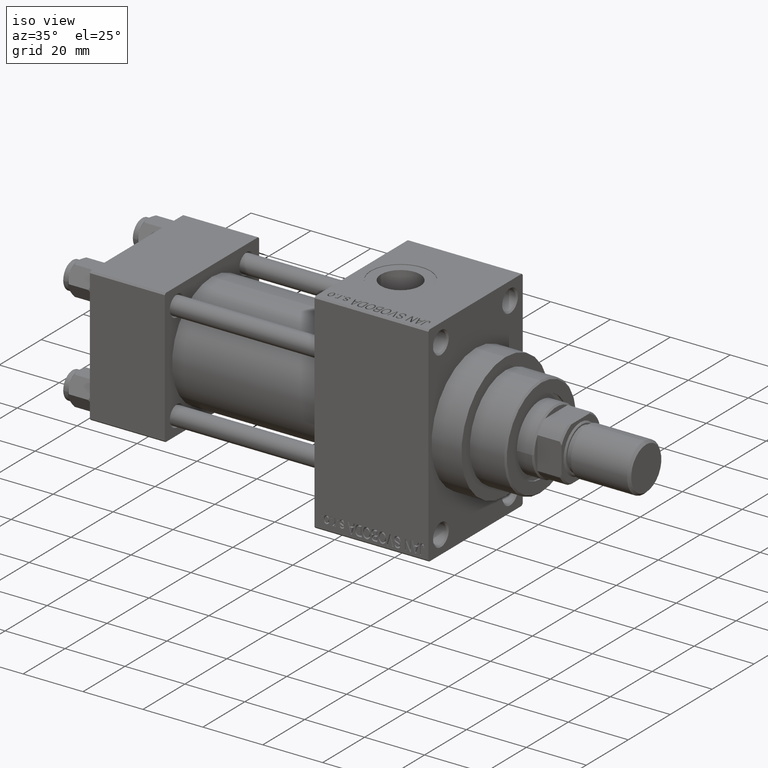
[diagram: clean part render]
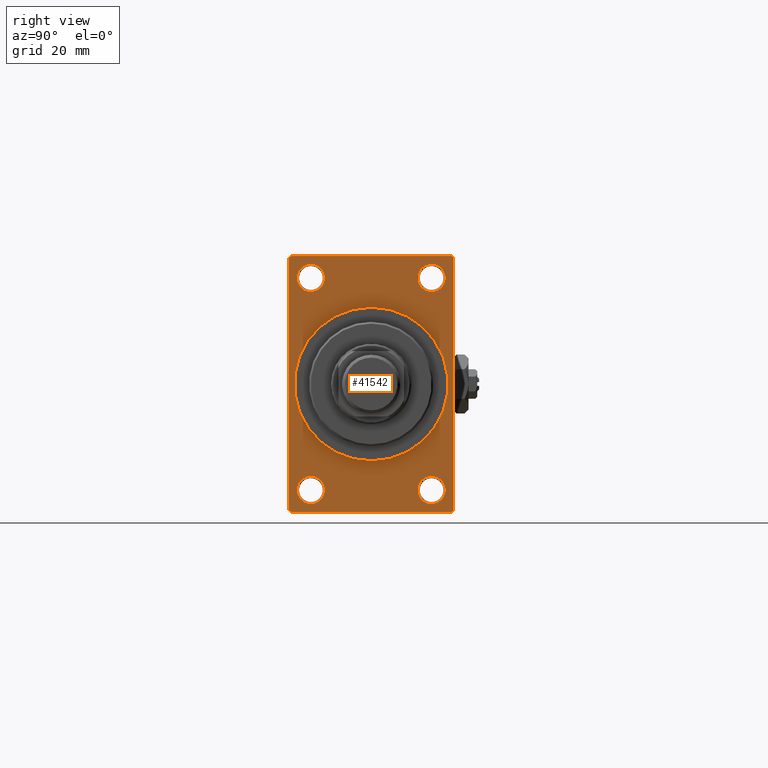
[diagram: tour spotlight — one face highlighted and labeled with its STEP entity id]
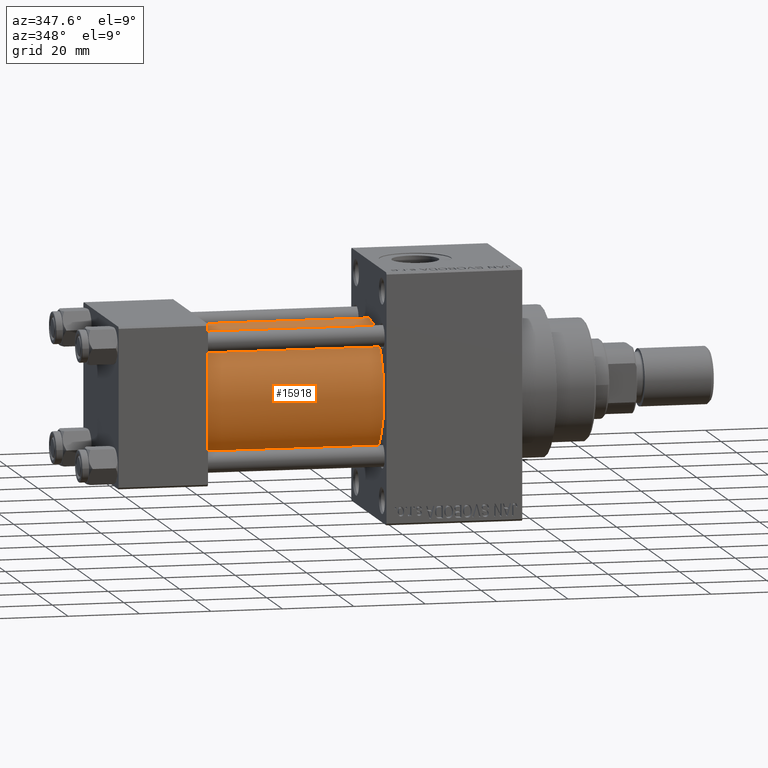
[diagram: tour spotlight — one face highlighted and labeled with its STEP entity id]
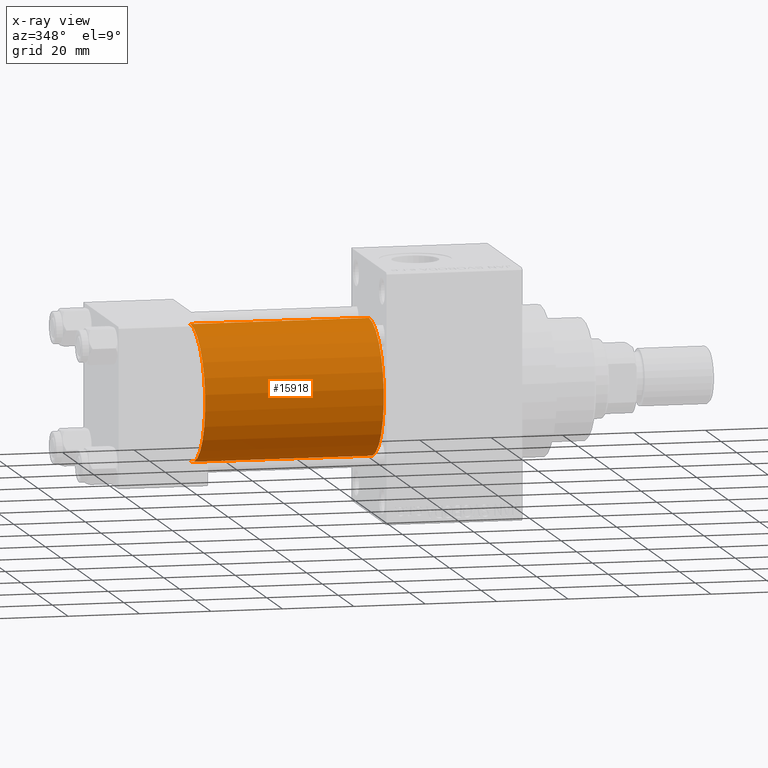
[diagram: x-ray of the same camera — body ghosted, this tour face saturated]
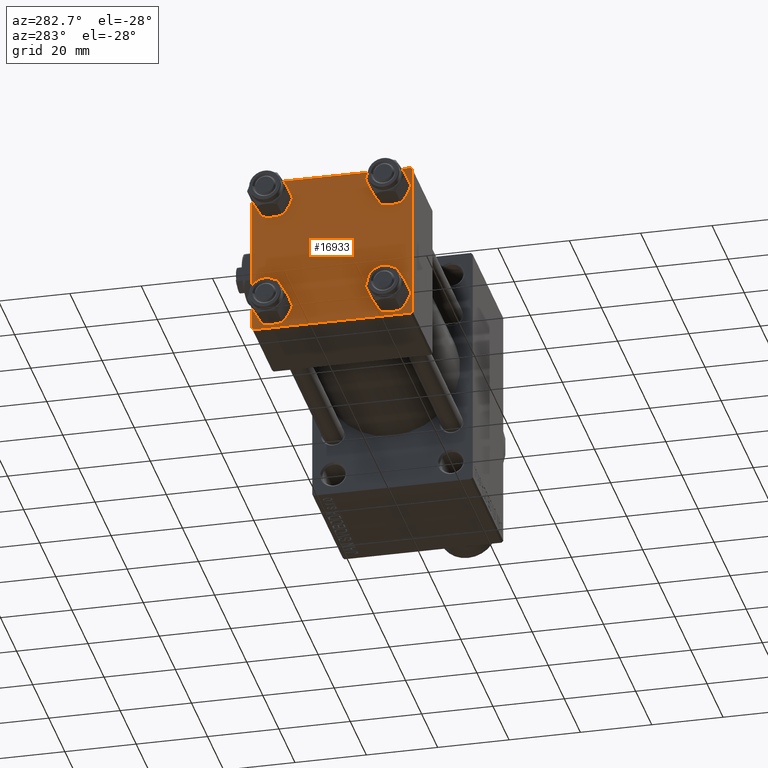
[diagram: tour spotlight — one face highlighted and labeled with its STEP entity id]
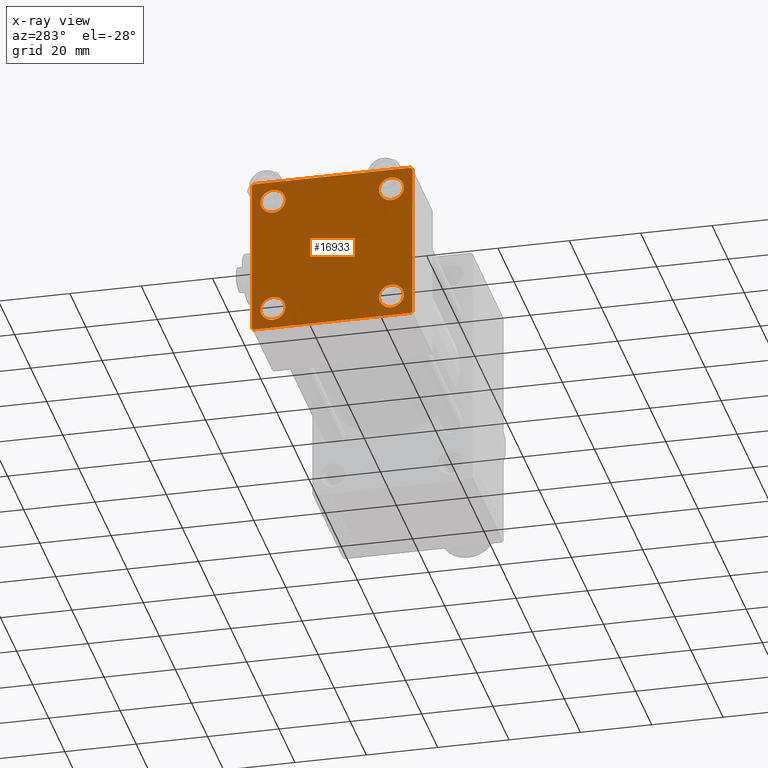
[diagram: x-ray of the same camera — body ghosted, this tour face saturated]
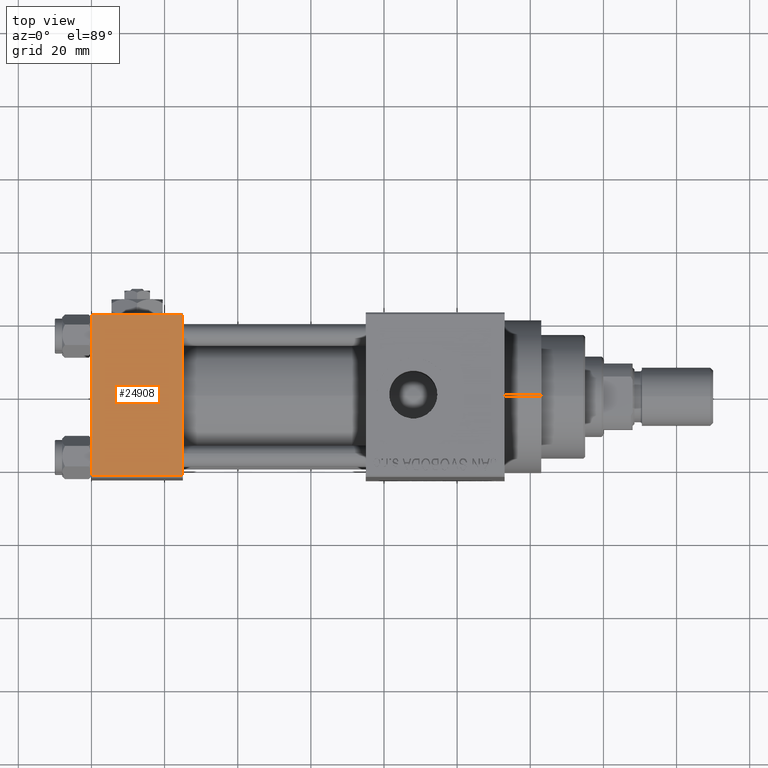
[diagram: tour spotlight — one face highlighted and labeled with its STEP entity id]
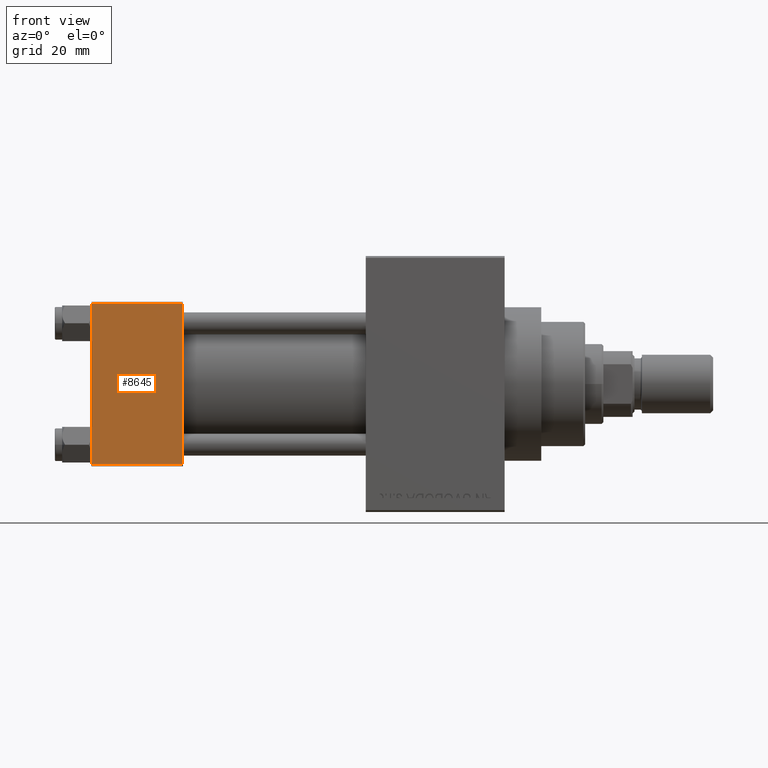
[diagram: tour spotlight — one face highlighted and labeled with its STEP entity id]
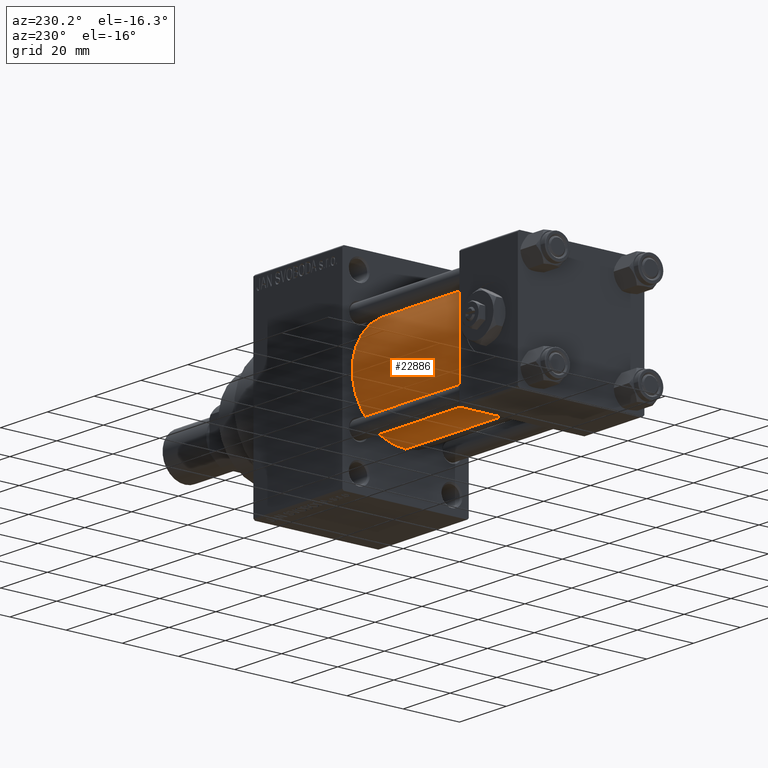
[diagram: tour spotlight — one face highlighted and labeled with its STEP entity id]
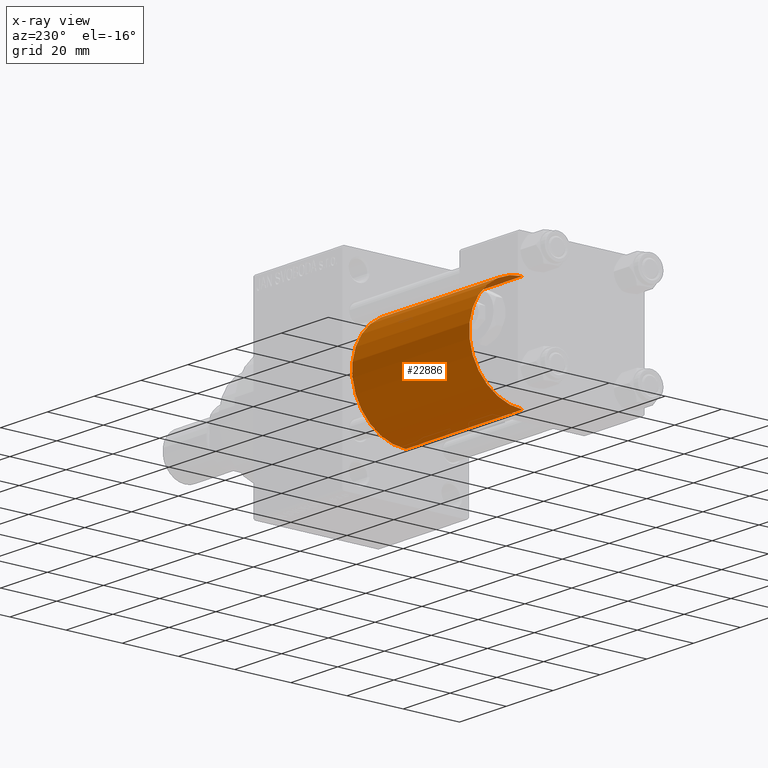
[diagram: x-ray of the same camera — body ghosted, this tour face saturated]
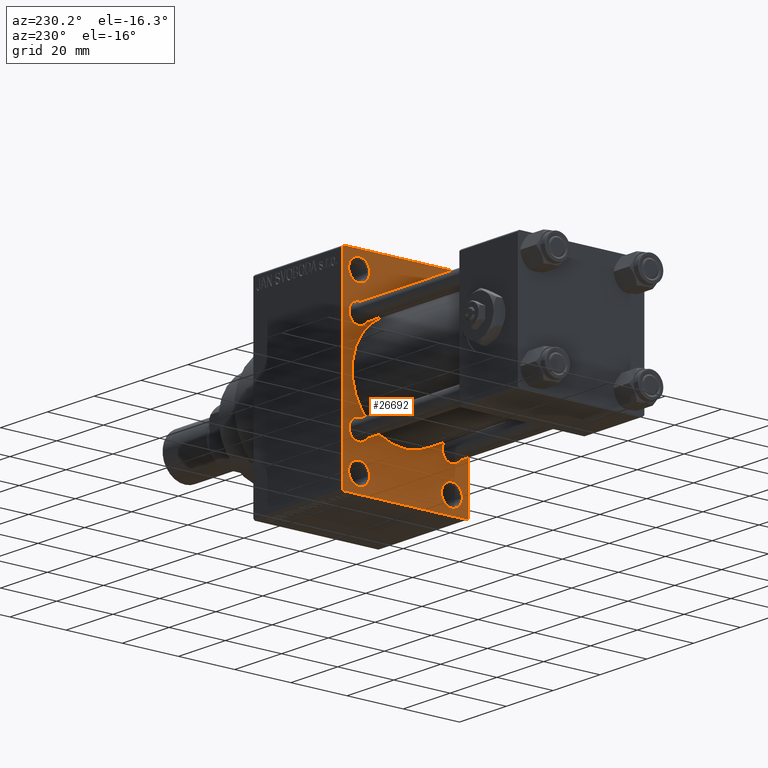
[diagram: tour spotlight — one face highlighted and labeled with its STEP entity id]
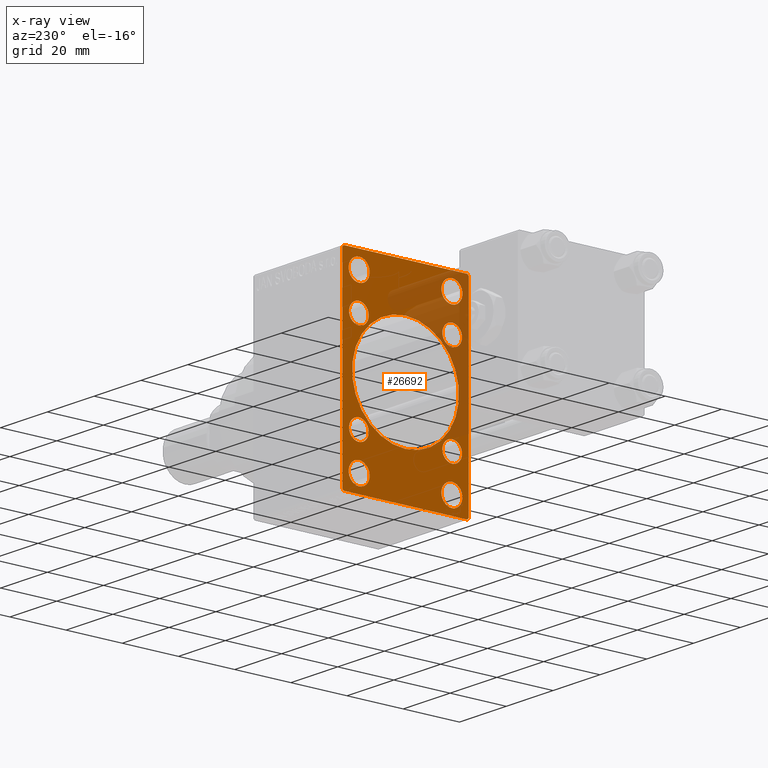
[diagram: x-ray of the same camera — body ghosted, this tour face saturated]
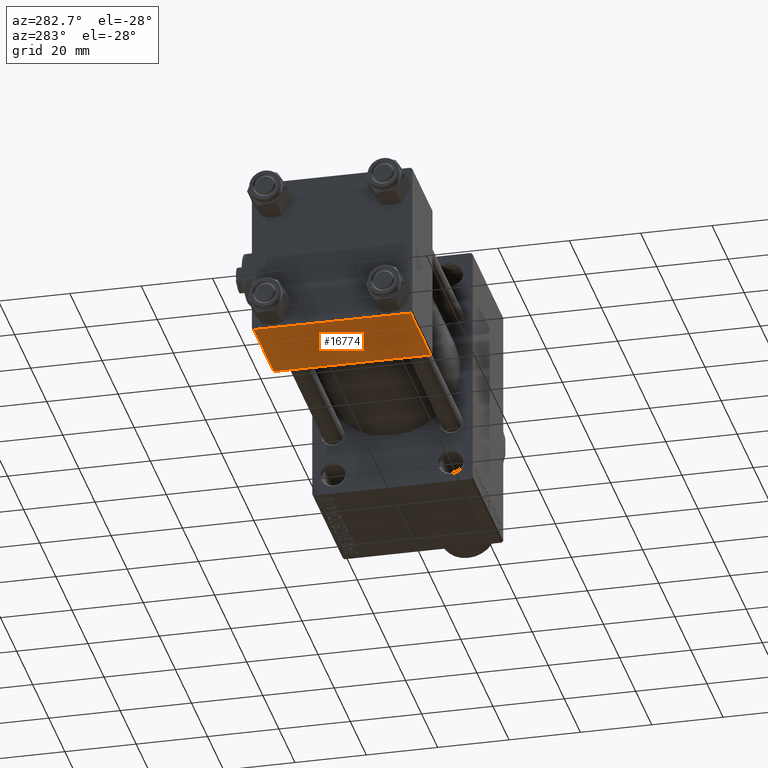
[diagram: tour spotlight — one face highlighted and labeled with its STEP entity id]
A machine part: a face-by-face anatomy tour. The part has 1159 B-rep faces; the first image is the clean iso view, then the 8 largest visible faces are spotlighted one at a time (largest first), each with its STEP entity span.

Face 1 — right view, entity #41542. In plain terms, the highlighted planar face has unit normal (-1, 0, 0).
Definition (entity closure, byte-faithful):
#214 = CIRCLE ( 'NONE', #46110, 3.750000000000069278 ) ;
#594 = FACE_BOUND ( 'NONE', #15692, .T. ) ;
#805 = CIRCLE ( 'NONE', #28513, 3.750000000000069278 ) ;
#837 = DIRECTION ( 'NONE',  ( -1.000000000000000000, 0.000000000000000000, -0.000000000000000000 ) ) ;
#1018 = DIRECTION ( 'NONE',  ( 0.000000000000000000, 0.000000000000000000, -1.000000000000000000 ) ) ;
#1030 = EDGE_CURVE ( 'NONE', #40903, #36300, #21369, .T. ) ;
#1089 = DIRECTION ( 'NONE',  ( -0.000000000000000000, 0.000000000000000000, 1.000000000000000000 ) ) ;
#1675 = CARTESIAN_POINT ( 'NONE',  ( 113.0000000000000142, -22.50000000000000355, 35.00000000000000000 ) ) ;
#1748 = EDGE_CURVE ( 'NONE', #32187, #2386, #805, .T. ) ;
#1982 = DIRECTION ( 'NONE',  ( 0.000000000000000000, 0.000000000000000000, 1.000000000000000000 ) ) ;
#1988 = DIRECTION ( 'NONE',  ( -1.000000000000000000, -0.000000000000000000, -0.000000000000000000 ) ) ;
#2025 = DIRECTION ( 'NONE',  ( 0.000000000000000000, 0.000000000000000000, 1.000000000000000000 ) ) ;
#2386 = VERTEX_POINT ( 'NONE', #25653 ) ;
#2948 = DIRECTION ( 'NONE',  ( -1.000000000000000000, -0.000000000000000000, -0.000000000000000000 ) ) ;
#3058 = EDGE_CURVE ( 'NONE', #22877, #13117, #23804, .T. ) ;
#3062 = VERTEX_POINT ( 'NONE', #5990 ) ;
#4292 = DIRECTION ( 'NONE',  ( 0.000000000000000000, 0.000000000000000000, 1.000000000000000000 ) ) ;
#4332 = CARTESIAN_POINT ( 'NONE',  ( 113.0000000000000142, -16.50000000000000000, -32.75000000000007105 ) ) ;
#4354 = ORIENTED_EDGE ( 'NONE', *, *, #29695, .T. ) ;
#4537 = CARTESIAN_POINT ( 'NONE',  ( 113.0000000000000142, 22.49999999999999645, 34.50000000000000000 ) ) ;
#4565 = FACE_OUTER_BOUND ( 'NONE', #11978, .T. ) ;
#4907 = DIRECTION ( 'NONE',  ( 1.000000000000000000, 0.000000000000000000, 0.000000000000000000 ) ) ;
#5052 = FACE_BOUND ( 'NONE', #34253, .T. ) ;
#5152 = DIRECTION ( 'NONE',  ( 0.000000000000000000, 0.000000000000000000, -1.000000000000000000 ) ) ;
#5690 = EDGE_CURVE ( 'NONE', #31993, #31877, #36595, .T. ) ;
#5990 = CARTESIAN_POINT ( 'NONE',  ( 113.0000000000000142, -16.50000000000000000, -25.24999999999992184 ) ) ;
#6067 = CIRCLE ( 'NONE', #10028, 3.750000000000076383 ) ;
#6421 = CARTESIAN_POINT ( 'NONE',  ( 113.0000000000000142, -16.50000000000000000, -28.99999999999999289 ) ) ;
#6456 = DIRECTION ( 'NONE',  ( 0.000000000000000000, 0.000000000000000000, 1.000000000000000000 ) ) ;
#6836 = ORIENTED_EDGE ( 'NONE', *, *, #32033, .T. ) ;
#6844 = AXIS2_PLACEMENT_3D ( 'NONE', #35969, #48109, #2025 ) ;
#6922 = CARTESIAN_POINT ( 'NONE',  ( 113.0000000000000142, -16.50000000000000000, 29.00000000000000711 ) ) ;
#7163 = ORIENTED_EDGE ( 'NONE', *, *, #5690, .T. ) ;
#7797 = ORIENTED_EDGE ( 'NONE', *, *, #23128, .T. ) ;
#7920 = LINE ( 'NONE', #48827, #25817 ) ;
#8239 = DIRECTION ( 'NONE',  ( 0.000000000000000000, -1.000000000000000000, 0.000000000000000000 ) ) ;
#8430 = CIRCLE ( 'NONE', #6844, 3.750000000000076383 ) ;
#8632 = ORIENTED_EDGE ( 'NONE', *, *, #30021, .T. ) ;
#8633 = EDGE_CURVE ( 'NONE', #19053, #22794, #40652, .T. ) ;
#8870 = DIRECTION ( 'NONE',  ( 0.000000000000000000, 0.000000000000000000, -1.000000000000000000 ) ) ;
#9019 = FACE_BOUND ( 'NONE', #45407, .T. ) ;
#9312 = CIRCLE ( 'NONE', #43380, 3.750000000000072831 ) ;
#9391 = ORIENTED_EDGE ( 'NONE', *, *, #18585, .T. ) ;
#10028 = AXIS2_PLACEMENT_3D ( 'NONE', #6421, #2948, #13371 ) ;
#10478 = EDGE_CURVE ( 'NONE', #21633, #3062, #43867, .T. ) ;
#11226 = LINE ( 'NONE', #37960, #44432 ) ;
#11834 = VERTEX_POINT ( 'NONE', #25746 ) ;
#11978 = EDGE_LOOP ( 'NONE', ( #8632, #7163, #38711, #15688, #34916, #13165, #9391, #45723 ) ) ;
#12078 = EDGE_LOOP ( 'NONE', ( #22541, #13910 ) ) ;
#12784 = CIRCLE ( 'NONE', #29408, 21.00000000000000000 ) ;
#13117 = VERTEX_POINT ( 'NONE', #22438 ) ;
#13152 = DIRECTION ( 'NONE',  ( 0.000000000000000000, 0.000000000000000000, 1.000000000000000000 ) ) ;
#13165 = ORIENTED_EDGE ( 'NONE', *, *, #8633, .T. ) ;
#13371 = DIRECTION ( 'NONE',  ( 0.000000000000000000, 0.000000000000000000, 1.000000000000000000 ) ) ;
#13851 = CARTESIAN_POINT ( 'NONE',  ( 113.0000000000000142, -21.99999999999998934, 35.00000000000000000 ) ) ;
#13910 = ORIENTED_EDGE ( 'NONE', *, *, #44153, .F. ) ;
#14363 = CARTESIAN_POINT ( 'NONE',  ( 113.0000000000000142, 16.50000000000000000, 32.75000000000007816 ) ) ;
#14416 = EDGE_CURVE ( 'NONE', #19053, #15416, #29294, .T. ) ;
#14638 = DIRECTION ( 'NONE',  ( -0.000000000000000000, -0.7071067811865474617, -0.7071067811865474617 ) ) ;
#14720 = EDGE_CURVE ( 'NONE', #2386, #32187, #214, .T. ) ;
#14980 = ORIENTED_EDGE ( 'NONE', *, *, #10478, .T. ) ;
#15416 = VERTEX_POINT ( 'NONE', #38923 ) ;
#15461 = CARTESIAN_POINT ( 'NONE',  ( 113.0000000000000142, 16.50000000000000000, 25.24999999999993250 ) ) ;
#15676 = CARTESIAN_POINT ( 'NONE',  ( 113.0000000000000142, 16.50000000000000000, -32.75000000000007105 ) ) ;
#15688 = ORIENTED_EDGE ( 'NONE', *, *, #48298, .T. ) ;
#15692 = EDGE_LOOP ( 'NONE', ( #4354, #6836 ) ) ;
#16525 = AXIS2_PLACEMENT_3D ( 'NONE', #25571, #19122, #31007 ) ;
#16823 = VECTOR ( 'NONE', #18136, 1000.000000000000000 ) ;
#18136 = DIRECTION ( 'NONE',  ( 0.000000000000000000, 0.000000000000000000, -1.000000000000000000 ) ) ;
#18548 = VECTOR ( 'NONE', #21541, 1000.000000000000000 ) ;
#18585 = EDGE_CURVE ( 'NONE', #22794, #42186, #37548, .T. ) ;
#18851 = LINE ( 'NONE', #1675, #45739 ) ;
#19053 = VERTEX_POINT ( 'NONE', #4537 ) ;
#19122 = DIRECTION ( 'NONE',  ( -1.000000000000000000, -0.000000000000000000, -0.000000000000000000 ) ) ;
#19865 = CARTESIAN_POINT ( 'NONE',  ( 113.0000000000000142, 0.000000000000000000, 0.000000000000000000 ) ) ;
#20173 = FACE_BOUND ( 'NONE', #33281, .T. ) ;
#20379 = VERTEX_POINT ( 'NONE', #14363 ) ;
#20727 = ORIENTED_EDGE ( 'NONE', *, *, #3058, .T. ) ;
#21108 = DIRECTION ( 'NONE',  ( -1.000000000000000000, -0.000000000000000000, -0.000000000000000000 ) ) ;
#21369 = CIRCLE ( 'NONE', #34827, 21.00000000000000000 ) ;
#21494 = CARTESIAN_POINT ( 'NONE',  ( 113.0000000000000142, -21.99999999999998934, -35.00000000000000000 ) ) ;
#21541 = DIRECTION ( 'NONE',  ( 0.000000000000000000, -1.000000000000000000, 0.000000000000000000 ) ) ;
#21633 = VERTEX_POINT ( 'NONE', #4332 ) ;
#22438 = CARTESIAN_POINT ( 'NONE',  ( 113.0000000000000142, 16.50000000000000000, -25.24999999999992184 ) ) ;
#22541 = ORIENTED_EDGE ( 'NONE', *, *, #1030, .F. ) ;
#22794 = VERTEX_POINT ( 'NONE', #30550 ) ;
#22877 = VERTEX_POINT ( 'NONE', #15676 ) ;
#23128 = EDGE_CURVE ( 'NONE', #13117, #22877, #8430, .T. ) ;
#23804 = CIRCLE ( 'NONE', #32525, 3.750000000000076383 ) ;
#24124 = PLANE ( 'NONE',  #42769 ) ;
#25272 = DIRECTION ( 'NONE',  ( 0.000000000000000000, -0.7071067811865474617, 0.7071067811865474617 ) ) ;
#25476 = ORIENTED_EDGE ( 'NONE', *, *, #14720, .T. ) ;
#25571 = CARTESIAN_POINT ( 'NONE',  ( 113.0000000000000142, 16.50000000000000000, 29.00000000000000355 ) ) ;
#25653 = CARTESIAN_POINT ( 'NONE',  ( 113.0000000000000142, -16.50000000000000000, 25.24999999999993960 ) ) ;
#25746 = CARTESIAN_POINT ( 'NONE',  ( 113.0000000000000142, 21.99999999999999645, -35.00000000000000000 ) ) ;
#25817 = VECTOR ( 'NONE', #14638, 1000.000000000000114 ) ;
#26022 = CIRCLE ( 'NONE', #16525, 3.750000000000072831 ) ;
#26258 = EDGE_CURVE ( 'NONE', #42186, #28355, #7920, .T. ) ;
#26546 = CARTESIAN_POINT ( 'NONE',  ( 113.0000000000000142, -22.50000000000000355, -34.49999999999997158 ) ) ;
#26566 = EDGE_CURVE ( 'NONE', #3062, #21633, #6067, .T. ) ;
#27136 = CARTESIAN_POINT ( 'NONE',  ( 113.0000000000000142, 22.49999999999999645, 35.00000000000000000 ) ) ;
#27375 = LINE ( 'NONE', #31102, #40508 ) ;
#27454 = CARTESIAN_POINT ( 'NONE',  ( 113.0000000000000142, 0.000000000000000000, 0.000000000000000000 ) ) ;
#28355 = VERTEX_POINT ( 'NONE', #38497 ) ;
#28513 = AXIS2_PLACEMENT_3D ( 'NONE', #6922, #36403, #1982 ) ;
#29213 = VERTEX_POINT ( 'NONE', #15461 ) ;
#29294 = LINE ( 'NONE', #36966, #16823 ) ;
#29408 = AXIS2_PLACEMENT_3D ( 'NONE', #19865, #34964, #1018 ) ;
#29695 = EDGE_CURVE ( 'NONE', #29213, #20379, #9312, .T. ) ;
#29976 = CARTESIAN_POINT ( 'NONE',  ( 113.0000000000000142, 21.99999999999999645, 35.00000000000000000 ) ) ;
#30021 = EDGE_CURVE ( 'NONE', #28355, #31993, #18851, .T. ) ;
#30550 = CARTESIAN_POINT ( 'NONE',  ( 113.0000000000000142, 21.99999999999999645, 35.00000000000000000 ) ) ;
#31007 = DIRECTION ( 'NONE',  ( 0.000000000000000000, 0.000000000000000000, 1.000000000000000000 ) ) ;
#31102 = CARTESIAN_POINT ( 'NONE',  ( 113.0000000000000142, 22.49999999999999645, -34.50000000000000000 ) ) ;
#31877 = VERTEX_POINT ( 'NONE', #35748 ) ;
#31993 = VERTEX_POINT ( 'NONE', #26546 ) ;
#32033 = EDGE_CURVE ( 'NONE', #20379, #29213, #26022, .T. ) ;
#32187 = VERTEX_POINT ( 'NONE', #39908 ) ;
#32525 = AXIS2_PLACEMENT_3D ( 'NONE', #47857, #21108, #36441 ) ;
#33281 = EDGE_LOOP ( 'NONE', ( #20727, #7797 ) ) ;
#33769 = CARTESIAN_POINT ( 'NONE',  ( 113.0000000000000142, -16.50000000000000000, -28.99999999999999289 ) ) ;
#34149 = VECTOR ( 'NONE', #44037, 999.9999999999998863 ) ;
#34253 = EDGE_LOOP ( 'NONE', ( #14980, #48352 ) ) ;
#34827 = AXIS2_PLACEMENT_3D ( 'NONE', #27454, #4907, #8870 ) ;
#34916 = ORIENTED_EDGE ( 'NONE', *, *, #14416, .F. ) ;
#34964 = DIRECTION ( 'NONE',  ( 1.000000000000000000, 0.000000000000000000, 0.000000000000000000 ) ) ;
#35748 = CARTESIAN_POINT ( 'NONE',  ( 113.0000000000000142, -21.99999999999997513, -35.00000000000000000 ) ) ;
#35969 = CARTESIAN_POINT ( 'NONE',  ( 113.0000000000000142, 16.50000000000000000, -28.99999999999999289 ) ) ;
#36185 = CARTESIAN_POINT ( 'NONE',  ( 113.0000000000000142, 16.50000000000000000, 29.00000000000000355 ) ) ;
#36300 = VERTEX_POINT ( 'NONE', #45389 ) ;
#36403 = DIRECTION ( 'NONE',  ( -1.000000000000000000, -0.000000000000000000, -0.000000000000000000 ) ) ;
#36441 = DIRECTION ( 'NONE',  ( 0.000000000000000000, 0.000000000000000000, 1.000000000000000000 ) ) ;
#36595 = LINE ( 'NONE', #21494, #34149 ) ;
#36966 = CARTESIAN_POINT ( 'NONE',  ( 113.0000000000000142, 22.49999999999999645, 35.00000000000000000 ) ) ;
#37548 = LINE ( 'NONE', #27136, #18548 ) ;
#37960 = CARTESIAN_POINT ( 'NONE',  ( 113.0000000000000142, 22.49999999999999645, -35.00000000000000000 ) ) ;
#38497 = CARTESIAN_POINT ( 'NONE',  ( 113.0000000000000142, -22.50000000000000355, 34.50000000000000000 ) ) ;
#38711 = ORIENTED_EDGE ( 'NONE', *, *, #43835, .F. ) ;
#38923 = CARTESIAN_POINT ( 'NONE',  ( 113.0000000000000142, 22.49999999999999645, -34.50000000000000000 ) ) ;
#39901 = AXIS2_PLACEMENT_3D ( 'NONE', #33769, #48898, #4292 ) ;
#39908 = CARTESIAN_POINT ( 'NONE',  ( 113.0000000000000142, -16.50000000000000000, 32.75000000000007816 ) ) ;
#40397 = DIRECTION ( 'NONE',  ( -1.000000000000000000, -0.000000000000000000, -0.000000000000000000 ) ) ;
#40508 = VECTOR ( 'NONE', #42988, 1000.000000000000114 ) ;
#40652 = LINE ( 'NONE', #29976, #42977 ) ;
#40903 = VERTEX_POINT ( 'NONE', #42078 ) ;
#41542 = ADVANCED_FACE ( 'NONE', ( #9019, #5052, #20173, #594, #42232, #4565 ), #24124, .F. ) ;
#42078 = CARTESIAN_POINT ( 'NONE',  ( 113.0000000000000142, 0.000000000000000000, 21.00000000000000000 ) ) ;
#42186 = VERTEX_POINT ( 'NONE', #13851 ) ;
#42232 = FACE_BOUND ( 'NONE', #12078, .T. ) ;
#42714 = CARTESIAN_POINT ( 'NONE',  ( 113.0000000000000142, 0.000000000000000000, 0.000000000000000000 ) ) ;
#42769 = AXIS2_PLACEMENT_3D ( 'NONE', #42714, #837, #1089 ) ;
#42778 = ORIENTED_EDGE ( 'NONE', *, *, #1748, .T. ) ;
#42977 = VECTOR ( 'NONE', #25272, 1000.000000000000114 ) ;
#42988 = DIRECTION ( 'NONE',  ( -0.000000000000000000, 0.7071067811865474617, 0.7071067811865474617 ) ) ;
#43380 = AXIS2_PLACEMENT_3D ( 'NONE', #36185, #40397, #6456 ) ;
#43835 = EDGE_CURVE ( 'NONE', #11834, #31877, #11226, .T. ) ;
#43867 = CIRCLE ( 'NONE', #39901, 3.750000000000076383 ) ;
#44037 = DIRECTION ( 'NONE',  ( 0.000000000000000000, 0.7071067811865376918, -0.7071067811865574537 ) ) ;
#44108 = CARTESIAN_POINT ( 'NONE',  ( 113.0000000000000142, -16.50000000000000000, 29.00000000000000711 ) ) ;
#44153 = EDGE_CURVE ( 'NONE', #36300, #40903, #12784, .T. ) ;
#44432 = VECTOR ( 'NONE', #8239, 1000.000000000000000 ) ;
#45389 = CARTESIAN_POINT ( 'NONE',  ( 113.0000000000000142, 2.571758278209441661E-15, -21.00000000000000000 ) ) ;
#45407 = EDGE_LOOP ( 'NONE', ( #25476, #42778 ) ) ;
#45723 = ORIENTED_EDGE ( 'NONE', *, *, #26258, .T. ) ;
#45739 = VECTOR ( 'NONE', #5152, 1000.000000000000000 ) ;
#46110 = AXIS2_PLACEMENT_3D ( 'NONE', #44108, #1988, #13152 ) ;
#47857 = CARTESIAN_POINT ( 'NONE',  ( 113.0000000000000142, 16.50000000000000000, -28.99999999999999289 ) ) ;
#48109 = DIRECTION ( 'NONE',  ( -1.000000000000000000, -0.000000000000000000, -0.000000000000000000 ) ) ;
#48298 = EDGE_CURVE ( 'NONE', #11834, #15416, #27375, .T. ) ;
#48352 = ORIENTED_EDGE ( 'NONE', *, *, #26566, .T. ) ;
#48827 = CARTESIAN_POINT ( 'NONE',  ( 113.0000000000000142, -22.50000000000000355, 34.50000000000000000 ) ) ;
#48898 = DIRECTION ( 'NONE',  ( -1.000000000000000000, -0.000000000000000000, -0.000000000000000000 ) ) ;

Face 2 — auxiliary view, entity #15918. An x-ray twin of the same camera follows (body ghosted, this face saturated) — the face is partly hidden behind the body. In plain terms, the highlighted cylindrical surface (partial cylindrical patch) has radius 19 mm, axis along (-1, -0, -0).
Definition (entity closure, byte-faithful):
#1178 = DIRECTION ( 'NONE',  ( 1.000000000000000000, -0.000000000000000000, 0.000000000000000000 ) ) ;
#3569 = DIRECTION ( 'NONE',  ( 1.000000000000000000, 0.000000000000000000, 0.000000000000000000 ) ) ;
#4834 = DIRECTION ( 'NONE',  ( -1.000000000000000000, -0.000000000000000000, -0.000000000000000000 ) ) ;
#6013 = VERTEX_POINT ( 'NONE', #48851 ) ;
#6411 = VERTEX_POINT ( 'NONE', #15816 ) ;
#6420 = VERTEX_POINT ( 'NONE', #16072 ) ;
#8010 = CARTESIAN_POINT ( 'NONE',  ( 75.00000000000001421, -2.602085213965210642E-15, 0.000000000000000000 ) ) ;
#9578 = CARTESIAN_POINT ( 'NONE',  ( 25.00000000000000000, -2.602085213965210642E-15, 19.00000000000000000 ) ) ;
#9684 = DIRECTION ( 'NONE',  ( 0.000000000000000000, 0.000000000000000000, 1.000000000000000000 ) ) ;
#10274 = ORIENTED_EDGE ( 'NONE', *, *, #48293, .F. ) ;
#13011 = LINE ( 'NONE', #43232, #36530 ) ;
#15296 = DIRECTION ( 'NONE',  ( -1.000000000000000000, -0.000000000000000000, -0.000000000000000000 ) ) ;
#15798 = CARTESIAN_POINT ( 'NONE',  ( 25.00000000000000000, -2.602085213965210642E-15, 0.000000000000000000 ) ) ;
#15816 = CARTESIAN_POINT ( 'NONE',  ( 25.00000000000000000, -2.752562955852396712E-16, -19.00000000000000000 ) ) ;
#15918 = ADVANCED_FACE ( 'NONE', ( #24536 ), #39661, .T. ) ;
#16072 = CARTESIAN_POINT ( 'NONE',  ( 75.00000000000001421, -2.602085213965210642E-15, 19.00000000000000000 ) ) ;
#16693 = CIRCLE ( 'NONE', #24607, 19.00000000000000000 ) ;
#22143 = CIRCLE ( 'NONE', #34796, 19.00000000000000000 ) ;
#23214 = AXIS2_PLACEMENT_3D ( 'NONE', #36416, #24788, #9684 ) ;
#24536 = FACE_OUTER_BOUND ( 'NONE', #40318, .T. ) ;
#24607 = AXIS2_PLACEMENT_3D ( 'NONE', #15798, #1178, #30924 ) ;
#24788 = DIRECTION ( 'NONE',  ( -1.000000000000000000, -0.000000000000000000, -0.000000000000000000 ) ) ;
#25213 = VERTEX_POINT ( 'NONE', #9578 ) ;
#26263 = VECTOR ( 'NONE', #15296, 1000.000000000000000 ) ;
#30075 = DIRECTION ( 'NONE',  ( 0.000000000000000000, 0.000000000000000000, -1.000000000000000000 ) ) ;
#30913 = LINE ( 'NONE', #38096, #26263 ) ;
#30924 = DIRECTION ( 'NONE',  ( 0.000000000000000000, 0.000000000000000000, 1.000000000000000000 ) ) ;
#33429 = ORIENTED_EDGE ( 'NONE', *, *, #47974, .T. ) ;
#34796 = AXIS2_PLACEMENT_3D ( 'NONE', #8010, #3569, #30075 ) ;
#34821 = EDGE_CURVE ( 'NONE', #6420, #6013, #22143, .T. ) ;
#36416 = CARTESIAN_POINT ( 'NONE',  ( 75.00000000000001421, -2.602085213965210642E-15, 0.000000000000000000 ) ) ;
#36530 = VECTOR ( 'NONE', #4834, 1000.000000000000000 ) ;
#38096 = CARTESIAN_POINT ( 'NONE',  ( 75.00000000000001421, -2.602085213965210642E-15, 19.00000000000000000 ) ) ;
#39661 = CYLINDRICAL_SURFACE ( 'NONE', #23214, 19.00000000000000000 ) ;
#40318 = EDGE_LOOP ( 'NONE', ( #10274, #45098, #33429, #44341 ) ) ;
#40851 = EDGE_CURVE ( 'NONE', #25213, #6411, #16693, .T. ) ;
#43232 = CARTESIAN_POINT ( 'NONE',  ( 75.00000000000001421, -2.752562955852396712E-16, -19.00000000000000000 ) ) ;
#44341 = ORIENTED_EDGE ( 'NONE', *, *, #40851, .T. ) ;
#45098 = ORIENTED_EDGE ( 'NONE', *, *, #34821, .F. ) ;
#47974 = EDGE_CURVE ( 'NONE', #6420, #25213, #30913, .T. ) ;
#48293 = EDGE_CURVE ( 'NONE', #6013, #6411, #13011, .T. ) ;
#48851 = CARTESIAN_POINT ( 'NONE',  ( 75.00000000000001421, -2.752562955852396712E-16, -19.00000000000000000 ) ) ;

Face 3 — auxiliary view, entity #16933. An x-ray twin of the same camera follows (body ghosted, this face saturated) — the face is partly hidden behind the body. In plain terms, the highlighted planar face has unit normal (-1, 0, 0).
Definition (entity closure, byte-faithful):
#142 = DIRECTION ( 'NONE',  ( 1.000000000000000000, -0.000000000000000000, 0.000000000000000000 ) ) ;
#310 = CARTESIAN_POINT ( 'NONE',  ( 0.000000000000000000, 16.59999999999999787, 13.10000000000000675 ) ) ;
#386 = LINE ( 'NONE', #19723, #40764 ) ;
#446 = VERTEX_POINT ( 'NONE', #33527 ) ;
#499 = VERTEX_POINT ( 'NONE', #31536 ) ;
#618 = EDGE_LOOP ( 'NONE', ( #28137, #19409 ) ) ;
#637 = VECTOR ( 'NONE', #14718, 1000.000000000000000 ) ;
#912 = VECTOR ( 'NONE', #6427, 1000.000000000000000 ) ;
#1300 = CARTESIAN_POINT ( 'NONE',  ( 0.000000000000000000, 21.99999999999999289, 22.50000000000000355 ) ) ;
#1575 = DIRECTION ( 'NONE',  ( 0.000000000000000000, 0.000000000000000000, 1.000000000000000000 ) ) ;
#1758 = CARTESIAN_POINT ( 'NONE',  ( 0.000000000000000000, 22.50000000000000000, 22.50000000000000355 ) ) ;
#1768 = LINE ( 'NONE', #31994, #22937 ) ;
#2715 = LINE ( 'NONE', #18552, #24508 ) ;
#3269 = CARTESIAN_POINT ( 'NONE',  ( 0.000000000000000000, 21.99999999999999289, -22.49999999999999645 ) ) ;
#3837 = VERTEX_POINT ( 'NONE', #310 ) ;
#3988 = AXIS2_PLACEMENT_3D ( 'NONE', #44367, #40654, #21819 ) ;
#4109 = EDGE_LOOP ( 'NONE', ( #46811, #31538 ) ) ;
#4217 = EDGE_CURVE ( 'NONE', #6069, #15292, #28985, .T. ) ;
#4932 = VERTEX_POINT ( 'NONE', #5213 ) ;
#5043 = AXIS2_PLACEMENT_3D ( 'NONE', #21034, #32403, #47535 ) ;
#5213 = CARTESIAN_POINT ( 'NONE',  ( 0.000000000000000000, -22.50000000000000000, -21.99999999999997158 ) ) ;
#5919 = FACE_OUTER_BOUND ( 'NONE', #24024, .T. ) ;
#6048 = VERTEX_POINT ( 'NONE', #46364 ) ;
#6069 = VERTEX_POINT ( 'NONE', #38184 ) ;
#6427 = DIRECTION ( 'NONE',  ( -0.000000000000000000, -0.7071067811865426878, -0.7071067811865524577 ) ) ;
#6765 = EDGE_CURVE ( 'NONE', #27065, #38700, #40029, .T. ) ;
#6838 = DIRECTION ( 'NONE',  ( 1.000000000000000000, -0.000000000000000000, 0.000000000000000000 ) ) ;
#8070 = DIRECTION ( 'NONE',  ( -0.000000000000000000, 0.7071067811865525687, 0.7071067811865425767 ) ) ;
#8327 = CARTESIAN_POINT ( 'NONE',  ( 0.000000000000000000, 16.59999999999999787, -16.60000000000000497 ) ) ;
#10178 = EDGE_CURVE ( 'NONE', #28006, #20780, #28049, .T. ) ;
#10262 = ORIENTED_EDGE ( 'NONE', *, *, #30637, .T. ) ;
#10814 = EDGE_LOOP ( 'NONE', ( #22117, #34792 ) ) ;
#11901 = CARTESIAN_POINT ( 'NONE',  ( 0.000000000000000000, -16.59999999999999076, -16.60000000000000853 ) ) ;
#12302 = DIRECTION ( 'NONE',  ( 0.000000000000000000, 0.000000000000000000, 1.000000000000000000 ) ) ;
#12713 = CIRCLE ( 'NONE', #28520, 3.499999999999996003 ) ;
#12748 = DIRECTION ( 'NONE',  ( 1.000000000000000000, -0.000000000000000000, 0.000000000000000000 ) ) ;
#13382 = AXIS2_PLACEMENT_3D ( 'NONE', #21864, #33960, #37207 ) ;
#14495 = CARTESIAN_POINT ( 'NONE',  ( 0.000000000000000000, 22.24999999999999645, 22.24999999999999645 ) ) ;
#14718 = DIRECTION ( 'NONE',  ( 0.000000000000000000, -0.7071067811865426878, 0.7071067811865524577 ) ) ;
#15292 = VERTEX_POINT ( 'NONE', #3269 ) ;
#15503 = CIRCLE ( 'NONE', #47950, 3.499999999999996003 ) ;
#16843 = CARTESIAN_POINT ( 'NONE',  ( 0.000000000000000000, 22.25000000000014566, -22.24999999999984013 ) ) ;
#16933 = ADVANCED_FACE ( 'NONE', ( #40339, #48028, #24980, #17060, #5919 ), #29194, .T. ) ;
#17060 = FACE_BOUND ( 'NONE', #4109, .T. ) ;
#17474 = VECTOR ( 'NONE', #35700, 1000.000000000000000 ) ;
#17727 = DIRECTION ( 'NONE',  ( 0.000000000000000000, 0.7071067811865474617, -0.7071067811865474617 ) ) ;
#18552 = CARTESIAN_POINT ( 'NONE',  ( 0.000000000000000000, -22.50000000000000000, 22.50000000000000000 ) ) ;
#19409 = ORIENTED_EDGE ( 'NONE', *, *, #35471, .T. ) ;
#19698 = DIRECTION ( 'NONE',  ( 0.000000000000000000, 0.000000000000000000, 1.000000000000000000 ) ) ;
#19723 = CARTESIAN_POINT ( 'NONE',  ( -0.000000000000000000, -22.24999999999984013, 22.25000000000015277 ) ) ;
#19829 = DIRECTION ( 'NONE',  ( 0.000000000000000000, 0.000000000000000000, 1.000000000000000000 ) ) ;
#19895 = EDGE_CURVE ( 'NONE', #6048, #23775, #386, .T. ) ;
#19947 = DIRECTION ( 'NONE',  ( 1.000000000000000000, -0.000000000000000000, 0.000000000000000000 ) ) ;
#20324 = AXIS2_PLACEMENT_3D ( 'NONE', #46677, #12748, #1575 ) ;
#20780 = VERTEX_POINT ( 'NONE', #40991 ) ;
#21034 = CARTESIAN_POINT ( 'NONE',  ( 0.000000000000000000, 0.000000000000000000, 0.000000000000000000 ) ) ;
#21690 = EDGE_CURVE ( 'NONE', #44005, #3837, #15503, .T. ) ;
#21819 = DIRECTION ( 'NONE',  ( 0.000000000000000000, 0.000000000000000000, 1.000000000000000000 ) ) ;
#21864 = CARTESIAN_POINT ( 'NONE',  ( 0.000000000000000000, -16.59999999999999076, 16.60000000000000853 ) ) ;
#22117 = ORIENTED_EDGE ( 'NONE', *, *, #42030, .T. ) ;
#22151 = LINE ( 'NONE', #48668, #26731 ) ;
#22937 = VECTOR ( 'NONE', #36432, 1000.000000000000000 ) ;
#23661 = CIRCLE ( 'NONE', #13382, 3.499999999999996003 ) ;
#23775 = VERTEX_POINT ( 'NONE', #31897 ) ;
#23846 = EDGE_LOOP ( 'NONE', ( #24999, #47168 ) ) ;
#23893 = CARTESIAN_POINT ( 'NONE',  ( 0.000000000000000000, 16.59999999999999787, 16.60000000000000497 ) ) ;
#24024 = EDGE_LOOP ( 'NONE', ( #44940, #40980, #35797, #10262, #36127, #25228, #39108, #45917 ) ) ;
#24089 = VERTEX_POINT ( 'NONE', #29919 ) ;
#24508 = VECTOR ( 'NONE', #36899, 1000.000000000000000 ) ;
#24636 = EDGE_CURVE ( 'NONE', #446, #43002, #25089, .T. ) ;
#24980 = FACE_BOUND ( 'NONE', #618, .T. ) ;
#24999 = ORIENTED_EDGE ( 'NONE', *, *, #10178, .T. ) ;
#25089 = CIRCLE ( 'NONE', #20324, 3.499999999999996003 ) ;
#25228 = ORIENTED_EDGE ( 'NONE', *, *, #19895, .T. ) ;
#25336 = EDGE_CURVE ( 'NONE', #3837, #44005, #28177, .T. ) ;
#25417 = CARTESIAN_POINT ( 'NONE',  ( 0.000000000000000000, 16.59999999999999787, 16.60000000000000497 ) ) ;
#25660 = DIRECTION ( 'NONE',  ( 0.000000000000000000, 0.000000000000000000, 1.000000000000000000 ) ) ;
#26161 = CIRCLE ( 'NONE', #3988, 3.499999999999996003 ) ;
#26303 = VECTOR ( 'NONE', #17727, 1000.000000000000114 ) ;
#26731 = VECTOR ( 'NONE', #29839, 1000.000000000000000 ) ;
#27010 = DIRECTION ( 'NONE',  ( 1.000000000000000000, -0.000000000000000000, 0.000000000000000000 ) ) ;
#27065 = VERTEX_POINT ( 'NONE', #1300 ) ;
#28006 = VERTEX_POINT ( 'NONE', #37076 ) ;
#28049 = CIRCLE ( 'NONE', #37516, 3.499999999999996003 ) ;
#28137 = ORIENTED_EDGE ( 'NONE', *, *, #24636, .T. ) ;
#28177 = CIRCLE ( 'NONE', #36976, 3.499999999999996003 ) ;
#28520 = AXIS2_PLACEMENT_3D ( 'NONE', #8327, #142, #12302 ) ;
#28985 = LINE ( 'NONE', #16843, #912 ) ;
#29016 = LINE ( 'NONE', #1758, #17474 ) ;
#29194 = PLANE ( 'NONE',  #5043 ) ;
#29228 = CIRCLE ( 'NONE', #41875, 3.499999999999996003 ) ;
#29395 = CARTESIAN_POINT ( 'NONE',  ( 0.000000000000000000, -16.59999999999999076, -16.60000000000000853 ) ) ;
#29641 = DIRECTION ( 'NONE',  ( 0.000000000000000000, 0.000000000000000000, 1.000000000000000000 ) ) ;
#29839 = DIRECTION ( 'NONE',  ( 0.000000000000000000, -1.000000000000000000, -2.312964634635742957E-16 ) ) ;
#29919 = CARTESIAN_POINT ( 'NONE',  ( 0.000000000000000000, -16.59999999999999076, 20.10000000000000853 ) ) ;
#30560 = EDGE_CURVE ( 'NONE', #15292, #499, #22151, .T. ) ;
#30637 = EDGE_CURVE ( 'NONE', #499, #4932, #33778, .T. ) ;
#31536 = CARTESIAN_POINT ( 'NONE',  ( 0.000000000000000000, -21.99999999999997158, -22.50000000000000711 ) ) ;
#31538 = ORIENTED_EDGE ( 'NONE', *, *, #25336, .T. ) ;
#31897 = CARTESIAN_POINT ( 'NONE',  ( 0.000000000000000000, -21.99999999999997868, 22.50000000000000000 ) ) ;
#31968 = EDGE_CURVE ( 'NONE', #47132, #24089, #23661, .T. ) ;
#31994 = CARTESIAN_POINT ( 'NONE',  ( 0.000000000000000000, 22.50000000000000000, 22.50000000000000355 ) ) ;
#32231 = CARTESIAN_POINT ( 'NONE',  ( 0.000000000000000000, 22.50000000000000000, 21.99999999999999645 ) ) ;
#32403 = DIRECTION ( 'NONE',  ( -1.000000000000000000, 0.000000000000000000, -0.000000000000000000 ) ) ;
#33459 = EDGE_CURVE ( 'NONE', #20780, #28006, #29228, .T. ) ;
#33527 = CARTESIAN_POINT ( 'NONE',  ( 0.000000000000000000, 16.59999999999999787, -13.10000000000000675 ) ) ;
#33778 = LINE ( 'NONE', #45431, #637 ) ;
#33960 = DIRECTION ( 'NONE',  ( 1.000000000000000000, -0.000000000000000000, 0.000000000000000000 ) ) ;
#34139 = EDGE_CURVE ( 'NONE', #6048, #4932, #2715, .T. ) ;
#34792 = ORIENTED_EDGE ( 'NONE', *, *, #31968, .T. ) ;
#35471 = EDGE_CURVE ( 'NONE', #43002, #446, #12713, .T. ) ;
#35700 = DIRECTION ( 'NONE',  ( 0.000000000000000000, -1.000000000000000000, -7.709882115452476934E-17 ) ) ;
#35797 = ORIENTED_EDGE ( 'NONE', *, *, #30560, .T. ) ;
#36127 = ORIENTED_EDGE ( 'NONE', *, *, #34139, .F. ) ;
#36432 = DIRECTION ( 'NONE',  ( 0.000000000000000000, 0.000000000000000000, -1.000000000000000000 ) ) ;
#36491 = EDGE_CURVE ( 'NONE', #27065, #23775, #29016, .T. ) ;
#36899 = DIRECTION ( 'NONE',  ( 0.000000000000000000, 0.000000000000000000, -1.000000000000000000 ) ) ;
#36976 = AXIS2_PLACEMENT_3D ( 'NONE', #25417, #44506, #25660 ) ;
#37076 = CARTESIAN_POINT ( 'NONE',  ( 0.000000000000000000, -16.59999999999999076, -13.10000000000001030 ) ) ;
#37207 = DIRECTION ( 'NONE',  ( 0.000000000000000000, 0.000000000000000000, 1.000000000000000000 ) ) ;
#37516 = AXIS2_PLACEMENT_3D ( 'NONE', #29395, #6838, #29641 ) ;
#38184 = CARTESIAN_POINT ( 'NONE',  ( 0.000000000000000000, 22.50000000000000000, -21.99999999999996803 ) ) ;
#38700 = VERTEX_POINT ( 'NONE', #32231 ) ;
#38718 = EDGE_CURVE ( 'NONE', #38700, #6069, #1768, .T. ) ;
#39108 = ORIENTED_EDGE ( 'NONE', *, *, #36491, .F. ) ;
#39801 = CARTESIAN_POINT ( 'NONE',  ( 0.000000000000000000, -16.59999999999999076, 13.10000000000001030 ) ) ;
#40029 = LINE ( 'NONE', #14495, #26303 ) ;
#40339 = FACE_BOUND ( 'NONE', #10814, .T. ) ;
#40654 = DIRECTION ( 'NONE',  ( 1.000000000000000000, -0.000000000000000000, 0.000000000000000000 ) ) ;
#40703 = CARTESIAN_POINT ( 'NONE',  ( 0.000000000000000000, 16.59999999999999787, 20.10000000000000142 ) ) ;
#40764 = VECTOR ( 'NONE', #8070, 999.9999999999998863 ) ;
#40980 = ORIENTED_EDGE ( 'NONE', *, *, #4217, .T. ) ;
#40991 = CARTESIAN_POINT ( 'NONE',  ( 0.000000000000000000, -16.59999999999999076, -20.10000000000000497 ) ) ;
#41875 = AXIS2_PLACEMENT_3D ( 'NONE', #11901, #27010, #19829 ) ;
#42030 = EDGE_CURVE ( 'NONE', #24089, #47132, #26161, .T. ) ;
#42618 = CARTESIAN_POINT ( 'NONE',  ( 0.000000000000000000, 16.59999999999999787, -20.10000000000000142 ) ) ;
#43002 = VERTEX_POINT ( 'NONE', #42618 ) ;
#44005 = VERTEX_POINT ( 'NONE', #40703 ) ;
#44367 = CARTESIAN_POINT ( 'NONE',  ( 0.000000000000000000, -16.59999999999999076, 16.60000000000000853 ) ) ;
#44506 = DIRECTION ( 'NONE',  ( 1.000000000000000000, -0.000000000000000000, 0.000000000000000000 ) ) ;
#44940 = ORIENTED_EDGE ( 'NONE', *, *, #38718, .T. ) ;
#45431 = CARTESIAN_POINT ( 'NONE',  ( 0.000000000000000000, -22.25000000000014566, -22.24999999999984013 ) ) ;
#45917 = ORIENTED_EDGE ( 'NONE', *, *, #6765, .T. ) ;
#46364 = CARTESIAN_POINT ( 'NONE',  ( 0.000000000000000000, -22.50000000000000000, 22.00000000000000000 ) ) ;
#46677 = CARTESIAN_POINT ( 'NONE',  ( 0.000000000000000000, 16.59999999999999787, -16.60000000000000497 ) ) ;
#46811 = ORIENTED_EDGE ( 'NONE', *, *, #21690, .T. ) ;
#47132 = VERTEX_POINT ( 'NONE', #39801 ) ;
#47168 = ORIENTED_EDGE ( 'NONE', *, *, #33459, .T. ) ;
#47535 = DIRECTION ( 'NONE',  ( -0.000000000000000000, 0.000000000000000000, 1.000000000000000000 ) ) ;
#47950 = AXIS2_PLACEMENT_3D ( 'NONE', #23893, #19947, #19698 ) ;
#48028 = FACE_BOUND ( 'NONE', #23846, .T. ) ;
#48668 = CARTESIAN_POINT ( 'NONE',  ( 0.000000000000000000, 22.50000000000000000, -22.49999999999999645 ) ) ;

Face 4 — top view, entity #24908. In plain terms, the highlighted planar face has unit normal (0, 0, -1).
Definition (entity closure, byte-faithful):
#542 = FACE_OUTER_BOUND ( 'NONE', #21720, .T. ) ;
#1300 = CARTESIAN_POINT ( 'NONE',  ( 0.000000000000000000, 21.99999999999999289, 22.50000000000000355 ) ) ;
#1758 = CARTESIAN_POINT ( 'NONE',  ( 0.000000000000000000, 22.50000000000000000, 22.50000000000000355 ) ) ;
#2949 = VECTOR ( 'NONE', #32938, 1000.000000000000000 ) ;
#4152 = ORIENTED_EDGE ( 'NONE', *, *, #13735, .F. ) ;
#5949 = VECTOR ( 'NONE', #40250, 1000.000000000000000 ) ;
#6685 = CARTESIAN_POINT ( 'NONE',  ( 0.000000000000000000, 21.99999999999999289, 22.50000000000000355 ) ) ;
#9319 = ORIENTED_EDGE ( 'NONE', *, *, #36491, .T. ) ;
#11666 = LINE ( 'NONE', #19840, #26637 ) ;
#12181 = ORIENTED_EDGE ( 'NONE', *, *, #27714, .T. ) ;
#13282 = EDGE_CURVE ( 'NONE', #23775, #42614, #47433, .T. ) ;
#13735 = EDGE_CURVE ( 'NONE', #47193, #42614, #11666, .T. ) ;
#16965 = CARTESIAN_POINT ( 'NONE',  ( 25.00000000000000000, -21.99999999999999289, 22.50000000000000000 ) ) ;
#17474 = VECTOR ( 'NONE', #35700, 1000.000000000000000 ) ;
#19102 = DIRECTION ( 'NONE',  ( 0.000000000000000000, -1.000000000000000000, -7.709882115452476934E-17 ) ) ;
#19840 = CARTESIAN_POINT ( 'NONE',  ( 25.00000000000000000, 22.50000000000000000, 22.50000000000000355 ) ) ;
#21720 = EDGE_LOOP ( 'NONE', ( #9319, #46406, #4152, #12181 ) ) ;
#23775 = VERTEX_POINT ( 'NONE', #31897 ) ;
#24908 = ADVANCED_FACE ( 'NONE', ( #542 ), #37710, .F. ) ;
#26317 = DIRECTION ( 'NONE',  ( 0.000000000000000000, 7.709882115452476934E-17, -1.000000000000000000 ) ) ;
#26637 = VECTOR ( 'NONE', #19102, 1000.000000000000000 ) ;
#27065 = VERTEX_POINT ( 'NONE', #1300 ) ;
#27714 = EDGE_CURVE ( 'NONE', #47193, #27065, #40626, .T. ) ;
#29016 = LINE ( 'NONE', #1758, #17474 ) ;
#30289 = DIRECTION ( 'NONE',  ( 0.000000000000000000, 1.000000000000000000, 7.709882115452476934E-17 ) ) ;
#30352 = CARTESIAN_POINT ( 'NONE',  ( 25.00000000000000000, -21.99999999999997868, 22.50000000000000000 ) ) ;
#31436 = AXIS2_PLACEMENT_3D ( 'NONE', #34483, #26317, #30289 ) ;
#31897 = CARTESIAN_POINT ( 'NONE',  ( 0.000000000000000000, -21.99999999999997868, 22.50000000000000000 ) ) ;
#32938 = DIRECTION ( 'NONE',  ( -1.000000000000000000, 0.000000000000000000, 0.000000000000000000 ) ) ;
#34483 = CARTESIAN_POINT ( 'NONE',  ( 25.00000000000000000, 22.50000000000000000, 22.50000000000000355 ) ) ;
#35700 = DIRECTION ( 'NONE',  ( 0.000000000000000000, -1.000000000000000000, -7.709882115452476934E-17 ) ) ;
#36491 = EDGE_CURVE ( 'NONE', #27065, #23775, #29016, .T. ) ;
#37710 = PLANE ( 'NONE',  #31436 ) ;
#40250 = DIRECTION ( 'NONE',  ( 1.000000000000000000, 0.000000000000000000, 0.000000000000000000 ) ) ;
#40626 = LINE ( 'NONE', #6685, #2949 ) ;
#41256 = CARTESIAN_POINT ( 'NONE',  ( 25.00000000000000000, 21.99999999999999289, 22.50000000000000355 ) ) ;
#42614 = VERTEX_POINT ( 'NONE', #30352 ) ;
#46406 = ORIENTED_EDGE ( 'NONE', *, *, #13282, .T. ) ;
#47193 = VERTEX_POINT ( 'NONE', #41256 ) ;
#47433 = LINE ( 'NONE', #16965, #5949 ) ;

Face 5 — front view, entity #8645. In plain terms, the highlighted planar face has unit normal (0, 1, 0).
Definition (entity closure, byte-faithful):
#2715 = LINE ( 'NONE', #18552, #24508 ) ;
#2905 = DIRECTION ( 'NONE',  ( -1.000000000000000000, 0.000000000000000000, 0.000000000000000000 ) ) ;
#3419 = AXIS2_PLACEMENT_3D ( 'NONE', #14383, #26251, #41371 ) ;
#3453 = VECTOR ( 'NONE', #4641, 1000.000000000000000 ) ;
#4641 = DIRECTION ( 'NONE',  ( 0.000000000000000000, 0.000000000000000000, -1.000000000000000000 ) ) ;
#4779 = ORIENTED_EDGE ( 'NONE', *, *, #34139, .T. ) ;
#4932 = VERTEX_POINT ( 'NONE', #5213 ) ;
#5213 = CARTESIAN_POINT ( 'NONE',  ( 0.000000000000000000, -22.50000000000000000, -21.99999999999997158 ) ) ;
#6048 = VERTEX_POINT ( 'NONE', #46364 ) ;
#6867 = LINE ( 'NONE', #41289, #34036 ) ;
#8536 = VERTEX_POINT ( 'NONE', #37156 ) ;
#8645 = ADVANCED_FACE ( 'NONE', ( #21817 ), #10904, .F. ) ;
#10001 = EDGE_CURVE ( 'NONE', #12209, #8536, #16043, .T. ) ;
#10904 = PLANE ( 'NONE',  #3419 ) ;
#12209 = VERTEX_POINT ( 'NONE', #14549 ) ;
#14383 = CARTESIAN_POINT ( 'NONE',  ( 25.00000000000000000, -22.50000000000000000, 22.50000000000000000 ) ) ;
#14549 = CARTESIAN_POINT ( 'NONE',  ( 25.00000000000000000, -22.50000000000000000, 22.00000000000000000 ) ) ;
#16043 = LINE ( 'NONE', #33686, #3453 ) ;
#16707 = ORIENTED_EDGE ( 'NONE', *, *, #35325, .T. ) ;
#18552 = CARTESIAN_POINT ( 'NONE',  ( 0.000000000000000000, -22.50000000000000000, 22.50000000000000000 ) ) ;
#21817 = FACE_OUTER_BOUND ( 'NONE', #43951, .T. ) ;
#24258 = ORIENTED_EDGE ( 'NONE', *, *, #10001, .F. ) ;
#24508 = VECTOR ( 'NONE', #36899, 1000.000000000000000 ) ;
#26251 = DIRECTION ( 'NONE',  ( -0.000000000000000000, 1.000000000000000000, 0.000000000000000000 ) ) ;
#27653 = CARTESIAN_POINT ( 'NONE',  ( 25.00000000000000000, -22.50000000000000000, -21.99999999999998579 ) ) ;
#33686 = CARTESIAN_POINT ( 'NONE',  ( 25.00000000000000000, -22.50000000000000000, 22.50000000000000000 ) ) ;
#34036 = VECTOR ( 'NONE', #2905, 1000.000000000000000 ) ;
#34139 = EDGE_CURVE ( 'NONE', #6048, #4932, #2715, .T. ) ;
#35325 = EDGE_CURVE ( 'NONE', #12209, #6048, #6867, .T. ) ;
#36899 = DIRECTION ( 'NONE',  ( 0.000000000000000000, 0.000000000000000000, -1.000000000000000000 ) ) ;
#37156 = CARTESIAN_POINT ( 'NONE',  ( 25.00000000000000000, -22.50000000000000000, -21.99999999999997158 ) ) ;
#38002 = VECTOR ( 'NONE', #42777, 1000.000000000000000 ) ;
#41085 = ORIENTED_EDGE ( 'NONE', *, *, #44731, .T. ) ;
#41289 = CARTESIAN_POINT ( 'NONE',  ( 25.00000000000000000, -22.50000000000000000, 22.00000000000000000 ) ) ;
#41371 = DIRECTION ( 'NONE',  ( 0.000000000000000000, -0.000000000000000000, 1.000000000000000000 ) ) ;
#42777 = DIRECTION ( 'NONE',  ( 1.000000000000000000, 0.000000000000000000, 0.000000000000000000 ) ) ;
#43022 = LINE ( 'NONE', #27653, #38002 ) ;
#43951 = EDGE_LOOP ( 'NONE', ( #4779, #41085, #24258, #16707 ) ) ;
#44731 = EDGE_CURVE ( 'NONE', #4932, #8536, #43022, .T. ) ;
#46364 = CARTESIAN_POINT ( 'NONE',  ( 0.000000000000000000, -22.50000000000000000, 22.00000000000000000 ) ) ;

Face 6 — auxiliary view, entity #22886. An x-ray twin of the same camera follows (body ghosted, this face saturated) — the face is partly hidden behind the body. In plain terms, the highlighted cylindrical surface (partial cylindrical patch) has radius 19 mm, axis along (-1, -0, -0).
Definition (entity closure, byte-faithful):
#907 = AXIS2_PLACEMENT_3D ( 'NONE', #11338, #26442, #41563 ) ;
#4046 = EDGE_LOOP ( 'NONE', ( #40789, #41477, #18171, #11521 ) ) ;
#4834 = DIRECTION ( 'NONE',  ( -1.000000000000000000, -0.000000000000000000, -0.000000000000000000 ) ) ;
#6013 = VERTEX_POINT ( 'NONE', #48851 ) ;
#6411 = VERTEX_POINT ( 'NONE', #15816 ) ;
#6420 = VERTEX_POINT ( 'NONE', #16072 ) ;
#9578 = CARTESIAN_POINT ( 'NONE',  ( 25.00000000000000000, -2.602085213965210642E-15, 19.00000000000000000 ) ) ;
#11338 = CARTESIAN_POINT ( 'NONE',  ( 25.00000000000000000, -2.602085213965210642E-15, 0.000000000000000000 ) ) ;
#11521 = ORIENTED_EDGE ( 'NONE', *, *, #47974, .F. ) ;
#13011 = LINE ( 'NONE', #43232, #36530 ) ;
#14322 = DIRECTION ( 'NONE',  ( 0.000000000000000000, 0.000000000000000000, -1.000000000000000000 ) ) ;
#15296 = DIRECTION ( 'NONE',  ( -1.000000000000000000, -0.000000000000000000, -0.000000000000000000 ) ) ;
#15816 = CARTESIAN_POINT ( 'NONE',  ( 25.00000000000000000, -2.752562955852396712E-16, -19.00000000000000000 ) ) ;
#16072 = CARTESIAN_POINT ( 'NONE',  ( 75.00000000000001421, -2.602085213965210642E-15, 19.00000000000000000 ) ) ;
#17079 = EDGE_CURVE ( 'NONE', #6013, #6420, #30364, .T. ) ;
#18040 = DIRECTION ( 'NONE',  ( 1.000000000000000000, 0.000000000000000000, 0.000000000000000000 ) ) ;
#18171 = ORIENTED_EDGE ( 'NONE', *, *, #46956, .T. ) ;
#22886 = ADVANCED_FACE ( 'NONE', ( #26084 ), #33526, .T. ) ;
#25213 = VERTEX_POINT ( 'NONE', #9578 ) ;
#26084 = FACE_OUTER_BOUND ( 'NONE', #4046, .T. ) ;
#26263 = VECTOR ( 'NONE', #15296, 1000.000000000000000 ) ;
#26442 = DIRECTION ( 'NONE',  ( 1.000000000000000000, -0.000000000000000000, 0.000000000000000000 ) ) ;
#27799 = CIRCLE ( 'NONE', #907, 19.00000000000000000 ) ;
#30364 = CIRCLE ( 'NONE', #43811, 19.00000000000000000 ) ;
#30913 = LINE ( 'NONE', #38096, #26263 ) ;
#33526 = CYLINDRICAL_SURFACE ( 'NONE', #43249, 19.00000000000000000 ) ;
#36530 = VECTOR ( 'NONE', #4834, 1000.000000000000000 ) ;
#36864 = CARTESIAN_POINT ( 'NONE',  ( 75.00000000000001421, -2.602085213965210642E-15, 0.000000000000000000 ) ) ;
#37243 = DIRECTION ( 'NONE',  ( 0.000000000000000000, 0.000000000000000000, 1.000000000000000000 ) ) ;
#38096 = CARTESIAN_POINT ( 'NONE',  ( 75.00000000000001421, -2.602085213965210642E-15, 19.00000000000000000 ) ) ;
#40789 = ORIENTED_EDGE ( 'NONE', *, *, #17079, .F. ) ;
#41209 = DIRECTION ( 'NONE',  ( -1.000000000000000000, -0.000000000000000000, -0.000000000000000000 ) ) ;
#41454 = CARTESIAN_POINT ( 'NONE',  ( 75.00000000000001421, -2.602085213965210642E-15, 0.000000000000000000 ) ) ;
#41477 = ORIENTED_EDGE ( 'NONE', *, *, #48293, .T. ) ;
#41563 = DIRECTION ( 'NONE',  ( 0.000000000000000000, 0.000000000000000000, 1.000000000000000000 ) ) ;
#43232 = CARTESIAN_POINT ( 'NONE',  ( 75.00000000000001421, -2.752562955852396712E-16, -19.00000000000000000 ) ) ;
#43249 = AXIS2_PLACEMENT_3D ( 'NONE', #41454, #41209, #37243 ) ;
#43811 = AXIS2_PLACEMENT_3D ( 'NONE', #36864, #18040, #14322 ) ;
#46956 = EDGE_CURVE ( 'NONE', #6411, #25213, #27799, .T. ) ;
#47974 = EDGE_CURVE ( 'NONE', #6420, #25213, #30913, .T. ) ;
#48293 = EDGE_CURVE ( 'NONE', #6013, #6411, #13011, .T. ) ;
#48851 = CARTESIAN_POINT ( 'NONE',  ( 75.00000000000001421, -2.752562955852396712E-16, -19.00000000000000000 ) ) ;

Face 7 — auxiliary view, entity #26692. An x-ray twin of the same camera follows (body ghosted, this face saturated) — the face is partly hidden behind the body. In plain terms, the highlighted planar face has unit normal (-1, 0, 0).
Definition (entity closure, byte-faithful):
#14 = CIRCLE ( 'NONE', #27732, 3.500000000000006661 ) ;
#88 = VECTOR ( 'NONE', #46444, 1000.000000000000000 ) ;
#89 = CARTESIAN_POINT ( 'NONE',  ( 75.00000000000001421, -16.50000000000000000, -28.99999999999999289 ) ) ;
#158 = VERTEX_POINT ( 'NONE', #9590 ) ;
#285 = EDGE_CURVE ( 'NONE', #13237, #4765, #9840, .T. ) ;
#295 = DIRECTION ( 'NONE',  ( 0.000000000000000000, 0.000000000000000000, 1.000000000000000000 ) ) ;
#729 = DIRECTION ( 'NONE',  ( 0.000000000000000000, 0.000000000000000000, 1.000000000000000000 ) ) ;
#817 = EDGE_LOOP ( 'NONE', ( #17443, #19454 ) ) ;
#962 = DIRECTION ( 'NONE',  ( 0.000000000000000000, 0.000000000000000000, 1.000000000000000000 ) ) ;
#1003 = CARTESIAN_POINT ( 'NONE',  ( 75.00000000000001421, 28.49999999999999645, 28.49999999999999645 ) ) ;
#1144 = AXIS2_PLACEMENT_3D ( 'NONE', #20440, #35536, #16475 ) ;
#1161 = ORIENTED_EDGE ( 'NONE', *, *, #18691, .T. ) ;
#1621 = CIRCLE ( 'NONE', #24571, 3.500000000000006661 ) ;
#1993 = EDGE_CURVE ( 'NONE', #15669, #16848, #1621, .T. ) ;
#2185 = EDGE_LOOP ( 'NONE', ( #8786, #10358, #36777, #37719, #41551, #20385, #28567, #46263 ) ) ;
#2208 = DIRECTION ( 'NONE',  ( 1.000000000000000000, 0.000000000000000000, 0.000000000000000000 ) ) ;
#2221 = CARTESIAN_POINT ( 'NONE',  ( 75.00000000000001421, 16.59999999999999787, -16.60000000000000497 ) ) ;
#2339 = VERTEX_POINT ( 'NONE', #14030 ) ;
#2389 = DIRECTION ( 'NONE',  ( 0.000000000000000000, 0.000000000000000000, -1.000000000000000000 ) ) ;
#2514 = DIRECTION ( 'NONE',  ( 0.000000000000000000, 0.000000000000000000, 1.000000000000000000 ) ) ;
#2716 = DIRECTION ( 'NONE',  ( 1.000000000000000000, 0.000000000000000000, 0.000000000000000000 ) ) ;
#2741 = CARTESIAN_POINT ( 'NONE',  ( 75.00000000000001421, -16.59999999999999076, -20.10000000000001208 ) ) ;
#2931 = DIRECTION ( 'NONE',  ( 0.000000000000000000, 0.000000000000000000, 1.000000000000000000 ) ) ;
#2975 = CARTESIAN_POINT ( 'NONE',  ( 75.00000000000001421, -28.50000000000030198, -28.49999999999951328 ) ) ;
#3328 = CARTESIAN_POINT ( 'NONE',  ( 75.00000000000001421, 21.99999999999999645, 35.00000000000000000 ) ) ;
#3422 = FACE_BOUND ( 'NONE', #48517, .T. ) ;
#3569 = DIRECTION ( 'NONE',  ( 1.000000000000000000, 0.000000000000000000, 0.000000000000000000 ) ) ;
#3570 = EDGE_LOOP ( 'NONE', ( #41461, #26943 ) ) ;
#3615 = CIRCLE ( 'NONE', #23428, 3.500000000000006661 ) ;
#4407 = CARTESIAN_POINT ( 'NONE',  ( 75.00000000000001421, 16.59999999999999787, 13.09999999999999609 ) ) ;
#4704 = CARTESIAN_POINT ( 'NONE',  ( 75.00000000000001421, 16.50000000000000000, -28.99999999999999289 ) ) ;
#4765 = VERTEX_POINT ( 'NONE', #47879 ) ;
#4866 = DIRECTION ( 'NONE',  ( 0.000000000000000000, 0.000000000000000000, 1.000000000000000000 ) ) ;
#4912 = DIRECTION ( 'NONE',  ( 1.000000000000000000, 0.000000000000000000, 0.000000000000000000 ) ) ;
#5694 = CARTESIAN_POINT ( 'NONE',  ( 75.00000000000001421, 16.59999999999999787, 16.60000000000000497 ) ) ;
#6013 = VERTEX_POINT ( 'NONE', #48851 ) ;
#6401 = VECTOR ( 'NONE', #40112, 1000.000000000000000 ) ;
#6420 = VERTEX_POINT ( 'NONE', #16072 ) ;
#6732 = ORIENTED_EDGE ( 'NONE', *, *, #17079, .T. ) ;
#7141 = CIRCLE ( 'NONE', #36426, 3.749999999999930278 ) ;
#7879 = ORIENTED_EDGE ( 'NONE', *, *, #31758, .T. ) ;
#8010 = CARTESIAN_POINT ( 'NONE',  ( 75.00000000000001421, -2.602085213965210642E-15, 0.000000000000000000 ) ) ;
#8121 = PLANE ( 'NONE',  #25853 ) ;
#8690 = EDGE_CURVE ( 'NONE', #2339, #38298, #18456, .T. ) ;
#8769 = VECTOR ( 'NONE', #36009, 1000.000000000000114 ) ;
#8786 = ORIENTED_EDGE ( 'NONE', *, *, #46788, .T. ) ;
#8862 = FACE_BOUND ( 'NONE', #26972, .T. ) ;
#8864 = EDGE_CURVE ( 'NONE', #13237, #41313, #25944, .T. ) ;
#9120 = CARTESIAN_POINT ( 'NONE',  ( 75.00000000000001421, -16.59999999999999076, -16.60000000000000853 ) ) ;
#9260 = CARTESIAN_POINT ( 'NONE',  ( 75.00000000000001421, 28.49999999999999645, -28.49999999999999645 ) ) ;
#9590 = CARTESIAN_POINT ( 'NONE',  ( 75.00000000000001421, -16.59999999999999076, 20.10000000000001208 ) ) ;
#9777 = FACE_OUTER_BOUND ( 'NONE', #2185, .T. ) ;
#9840 = LINE ( 'NONE', #43782, #31738 ) ;
#10128 = CARTESIAN_POINT ( 'NONE',  ( 75.00000000000001421, 22.49999999999999645, -35.00000000000000000 ) ) ;
#10358 = ORIENTED_EDGE ( 'NONE', *, *, #12722, .T. ) ;
#10366 = CIRCLE ( 'NONE', #34066, 3.749999999999933831 ) ;
#10638 = VERTEX_POINT ( 'NONE', #39213 ) ;
#11005 = EDGE_CURVE ( 'NONE', #28772, #13865, #45443, .T. ) ;
#11245 = EDGE_LOOP ( 'NONE', ( #45150, #36135 ) ) ;
#11576 = CIRCLE ( 'NONE', #48790, 3.500000000000006661 ) ;
#11698 = CARTESIAN_POINT ( 'NONE',  ( 75.00000000000001421, -21.99999999999998934, 35.00000000000000000 ) ) ;
#11924 = VECTOR ( 'NONE', #48811, 1000.000000000000000 ) ;
#12097 = CARTESIAN_POINT ( 'NONE',  ( 75.00000000000001421, 0.000000000000000000, 0.000000000000000000 ) ) ;
#12342 = DIRECTION ( 'NONE',  ( -1.000000000000000000, 0.000000000000000000, -0.000000000000000000 ) ) ;
#12722 = EDGE_CURVE ( 'NONE', #18468, #4765, #21807, .T. ) ;
#12726 = DIRECTION ( 'NONE',  ( 1.000000000000000000, 0.000000000000000000, 0.000000000000000000 ) ) ;
#13237 = VERTEX_POINT ( 'NONE', #47195 ) ;
#13865 = VERTEX_POINT ( 'NONE', #37797 ) ;
#13906 = CARTESIAN_POINT ( 'NONE',  ( 75.00000000000001421, -16.50000000000000000, -28.99999999999999289 ) ) ;
#14030 = CARTESIAN_POINT ( 'NONE',  ( 75.00000000000001421, -16.50000000000000000, -25.25000000000005684 ) ) ;
#14152 = LINE ( 'NONE', #29263, #88 ) ;
#14208 = DIRECTION ( 'NONE',  ( 1.000000000000000000, 0.000000000000000000, 0.000000000000000000 ) ) ;
#14322 = DIRECTION ( 'NONE',  ( 0.000000000000000000, 0.000000000000000000, -1.000000000000000000 ) ) ;
#14323 = DIRECTION ( 'NONE',  ( -0.000000000000000000, 0.7071067811865474617, 0.7071067811865474617 ) ) ;
#14491 = EDGE_CURVE ( 'NONE', #28241, #40427, #38430, .T. ) ;
#14566 = CARTESIAN_POINT ( 'NONE',  ( 75.00000000000001421, -28.49999999999999645, 28.49999999999999645 ) ) ;
#14585 = FACE_BOUND ( 'NONE', #11245, .T. ) ;
#14919 = DIRECTION ( 'NONE',  ( 1.000000000000000000, 0.000000000000000000, 0.000000000000000000 ) ) ;
#15669 = VERTEX_POINT ( 'NONE', #18087 ) ;
#16072 = CARTESIAN_POINT ( 'NONE',  ( 75.00000000000001421, -2.602085213965210642E-15, 19.00000000000000000 ) ) ;
#16475 = DIRECTION ( 'NONE',  ( 0.000000000000000000, 0.000000000000000000, 1.000000000000000000 ) ) ;
#16660 = VERTEX_POINT ( 'NONE', #18879 ) ;
#16848 = VERTEX_POINT ( 'NONE', #2741 ) ;
#17076 = DIRECTION ( 'NONE',  ( 0.000000000000000000, 0.000000000000000000, 1.000000000000000000 ) ) ;
#17079 = EDGE_CURVE ( 'NONE', #6013, #6420, #30364, .T. ) ;
#17206 = FACE_BOUND ( 'NONE', #28065, .T. ) ;
#17443 = ORIENTED_EDGE ( 'NONE', *, *, #8690, .T. ) ;
#17494 = VERTEX_POINT ( 'NONE', #17679 ) ;
#17679 = CARTESIAN_POINT ( 'NONE',  ( 75.00000000000001421, 16.50000000000000000, 25.25000000000007461 ) ) ;
#17877 = AXIS2_PLACEMENT_3D ( 'NONE', #33029, #14208, #40478 ) ;
#18023 = CARTESIAN_POINT ( 'NONE',  ( 75.00000000000001421, 16.59999999999999787, -13.09999999999999787 ) ) ;
#18040 = DIRECTION ( 'NONE',  ( 1.000000000000000000, 0.000000000000000000, 0.000000000000000000 ) ) ;
#18087 = CARTESIAN_POINT ( 'NONE',  ( 75.00000000000001421, -16.59999999999999076, -13.10000000000000142 ) ) ;
#18089 = DIRECTION ( 'NONE',  ( 0.000000000000000000, -0.7071067811865376918, 0.7071067811865574537 ) ) ;
#18456 = CIRCLE ( 'NONE', #27948, 3.749999999999937383 ) ;
#18468 = VERTEX_POINT ( 'NONE', #21055 ) ;
#18582 = CARTESIAN_POINT ( 'NONE',  ( 75.00000000000001421, 22.49999999999999645, 35.00000000000000000 ) ) ;
#18691 = EDGE_CURVE ( 'NONE', #13865, #28772, #46252, .T. ) ;
#18879 = CARTESIAN_POINT ( 'NONE',  ( 75.00000000000001421, -16.50000000000000000, 32.74999999999993605 ) ) ;
#19438 = CIRCLE ( 'NONE', #28924, 3.500000000000003109 ) ;
#19454 = ORIENTED_EDGE ( 'NONE', *, *, #29193, .T. ) ;
#20385 = ORIENTED_EDGE ( 'NONE', *, *, #14491, .T. ) ;
#20440 = CARTESIAN_POINT ( 'NONE',  ( 75.00000000000001421, 16.59999999999999787, -16.60000000000000497 ) ) ;
#20868 = DIRECTION ( 'NONE',  ( 1.000000000000000000, 0.000000000000000000, 0.000000000000000000 ) ) ;
#20897 = DIRECTION ( 'NONE',  ( 1.000000000000000000, 0.000000000000000000, 0.000000000000000000 ) ) ;
#21019 = EDGE_CURVE ( 'NONE', #158, #37184, #19438, .T. ) ;
#21055 = CARTESIAN_POINT ( 'NONE',  ( 75.00000000000001421, -21.99999999999997513, -35.00000000000000000 ) ) ;
#21446 = CIRCLE ( 'NONE', #32497, 3.749999999999933831 ) ;
#21807 = LINE ( 'NONE', #2975, #46304 ) ;
#21825 = CARTESIAN_POINT ( 'NONE',  ( 75.00000000000001421, 16.50000000000000000, -32.74999999999992895 ) ) ;
#22012 = DIRECTION ( 'NONE',  ( 0.000000000000000000, 0.000000000000000000, 1.000000000000000000 ) ) ;
#22143 = CIRCLE ( 'NONE', #34796, 19.00000000000000000 ) ;
#22256 = DIRECTION ( 'NONE',  ( 1.000000000000000000, 0.000000000000000000, 0.000000000000000000 ) ) ;
#22361 = CARTESIAN_POINT ( 'NONE',  ( 75.00000000000001421, 16.50000000000000000, 29.00000000000000355 ) ) ;
#22406 = EDGE_CURVE ( 'NONE', #37391, #26762, #3615, .T. ) ;
#22509 = EDGE_CURVE ( 'NONE', #16848, #15669, #11576, .T. ) ;
#23080 = AXIS2_PLACEMENT_3D ( 'NONE', #40424, #20868, #2514 ) ;
#23235 = DIRECTION ( 'NONE',  ( -0.000000000000000000, 0.000000000000000000, 1.000000000000000000 ) ) ;
#23260 = VERTEX_POINT ( 'NONE', #41640 ) ;
#23428 = AXIS2_PLACEMENT_3D ( 'NONE', #5694, #2208, #17076 ) ;
#24571 = AXIS2_PLACEMENT_3D ( 'NONE', #9120, #4912, #35375 ) ;
#24747 = EDGE_CURVE ( 'NONE', #37184, #158, #44094, .T. ) ;
#25853 = AXIS2_PLACEMENT_3D ( 'NONE', #12097, #12342, #23235 ) ;
#25944 = LINE ( 'NONE', #14566, #47753 ) ;
#26353 = EDGE_CURVE ( 'NONE', #23260, #46209, #41633, .T. ) ;
#26360 = DIRECTION ( 'NONE',  ( 1.000000000000000000, 0.000000000000000000, 0.000000000000000000 ) ) ;
#26456 = FACE_BOUND ( 'NONE', #817, .T. ) ;
#26692 = ADVANCED_FACE ( 'NONE', ( #3422, #26456, #26700, #14585, #34620, #8862, #30922, #46525, #17206, #9777 ), #8121, .T. ) ;
#26700 = FACE_BOUND ( 'NONE', #40724, .T. ) ;
#26762 = VERTEX_POINT ( 'NONE', #4407 ) ;
#26833 = ORIENTED_EDGE ( 'NONE', *, *, #34821, .T. ) ;
#26843 = CARTESIAN_POINT ( 'NONE',  ( 75.00000000000001421, -16.50000000000000000, 29.00000000000000711 ) ) ;
#26943 = ORIENTED_EDGE ( 'NONE', *, *, #22509, .T. ) ;
#26972 = EDGE_LOOP ( 'NONE', ( #32421, #37749 ) ) ;
#27097 = DIRECTION ( 'NONE',  ( 0.000000000000000000, 0.000000000000000000, 1.000000000000000000 ) ) ;
#27732 = AXIS2_PLACEMENT_3D ( 'NONE', #36872, #48266, #2931 ) ;
#27948 = AXIS2_PLACEMENT_3D ( 'NONE', #13906, #29019, #44129 ) ;
#28037 = CARTESIAN_POINT ( 'NONE',  ( 75.00000000000001421, 16.59999999999999787, 20.10000000000001208 ) ) ;
#28065 = EDGE_LOOP ( 'NONE', ( #26833, #6732 ) ) ;
#28241 = VERTEX_POINT ( 'NONE', #3328 ) ;
#28312 = AXIS2_PLACEMENT_3D ( 'NONE', #89, #26360, #45693 ) ;
#28567 = ORIENTED_EDGE ( 'NONE', *, *, #42761, .T. ) ;
#28772 = VERTEX_POINT ( 'NONE', #18023 ) ;
#28924 = AXIS2_PLACEMENT_3D ( 'NONE', #35502, #20897, #42957 ) ;
#29019 = DIRECTION ( 'NONE',  ( 1.000000000000000000, 0.000000000000000000, 0.000000000000000000 ) ) ;
#29193 = EDGE_CURVE ( 'NONE', #38298, #2339, #29859, .T. ) ;
#29263 = CARTESIAN_POINT ( 'NONE',  ( 75.00000000000001421, 22.49999999999999645, 35.00000000000000000 ) ) ;
#29859 = CIRCLE ( 'NONE', #28312, 3.749999999999937383 ) ;
#29937 = CARTESIAN_POINT ( 'NONE',  ( 75.00000000000001421, -16.59999999999999076, -16.60000000000000853 ) ) ;
#30067 = ORIENTED_EDGE ( 'NONE', *, *, #21019, .T. ) ;
#30075 = DIRECTION ( 'NONE',  ( 0.000000000000000000, 0.000000000000000000, -1.000000000000000000 ) ) ;
#30364 = CIRCLE ( 'NONE', #43811, 19.00000000000000000 ) ;
#30411 = AXIS2_PLACEMENT_3D ( 'NONE', #2221, #2716, #43608 ) ;
#30704 = CARTESIAN_POINT ( 'NONE',  ( 75.00000000000001421, 16.50000000000000000, 29.00000000000000355 ) ) ;
#30744 = CIRCLE ( 'NONE', #43406, 3.749999999999930278 ) ;
#30922 = FACE_BOUND ( 'NONE', #33304, .T. ) ;
#31738 = VECTOR ( 'NONE', #2389, 1000.000000000000000 ) ;
#31758 = EDGE_CURVE ( 'NONE', #41663, #16660, #30744, .T. ) ;
#32421 = ORIENTED_EDGE ( 'NONE', *, *, #22406, .T. ) ;
#32497 = AXIS2_PLACEMENT_3D ( 'NONE', #30704, #39117, #962 ) ;
#32527 = CARTESIAN_POINT ( 'NONE',  ( 75.00000000000001421, -16.50000000000000000, 25.25000000000007816 ) ) ;
#33029 = CARTESIAN_POINT ( 'NONE',  ( 75.00000000000001421, -16.59999999999999076, 16.60000000000000853 ) ) ;
#33150 = LINE ( 'NONE', #10128, #6401 ) ;
#33304 = EDGE_LOOP ( 'NONE', ( #47309, #1161 ) ) ;
#34066 = AXIS2_PLACEMENT_3D ( 'NONE', #22361, #14919, #295 ) ;
#34100 = ORIENTED_EDGE ( 'NONE', *, *, #26353, .T. ) ;
#34620 = FACE_BOUND ( 'NONE', #39706, .T. ) ;
#34796 = AXIS2_PLACEMENT_3D ( 'NONE', #8010, #3569, #30075 ) ;
#34821 = EDGE_CURVE ( 'NONE', #6420, #6013, #22143, .T. ) ;
#35080 = CARTESIAN_POINT ( 'NONE',  ( 75.00000000000001421, 22.49999999999999645, -34.50000000000000000 ) ) ;
#35177 = DIRECTION ( 'NONE',  ( 1.000000000000000000, 0.000000000000000000, 0.000000000000000000 ) ) ;
#35375 = DIRECTION ( 'NONE',  ( 0.000000000000000000, 0.000000000000000000, 1.000000000000000000 ) ) ;
#35502 = CARTESIAN_POINT ( 'NONE',  ( 75.00000000000001421, -16.59999999999999076, 16.60000000000000853 ) ) ;
#35536 = DIRECTION ( 'NONE',  ( 1.000000000000000000, 0.000000000000000000, 0.000000000000000000 ) ) ;
#35624 = VERTEX_POINT ( 'NONE', #35080 ) ;
#35938 = EDGE_CURVE ( 'NONE', #16660, #41663, #7141, .T. ) ;
#36009 = DIRECTION ( 'NONE',  ( -0.000000000000000000, -0.7071067811865474617, -0.7071067811865474617 ) ) ;
#36135 = ORIENTED_EDGE ( 'NONE', *, *, #46015, .T. ) ;
#36426 = AXIS2_PLACEMENT_3D ( 'NONE', #37329, #43019, #4866 ) ;
#36777 = ORIENTED_EDGE ( 'NONE', *, *, #285, .F. ) ;
#36808 = EDGE_CURVE ( 'NONE', #10638, #17494, #21446, .T. ) ;
#36864 = CARTESIAN_POINT ( 'NONE',  ( 75.00000000000001421, -2.602085213965210642E-15, 0.000000000000000000 ) ) ;
#36872 = CARTESIAN_POINT ( 'NONE',  ( 75.00000000000001421, 16.59999999999999787, 16.60000000000000497 ) ) ;
#37184 = VERTEX_POINT ( 'NONE', #43445 ) ;
#37329 = CARTESIAN_POINT ( 'NONE',  ( 75.00000000000001421, -16.50000000000000000, 29.00000000000000711 ) ) ;
#37391 = VERTEX_POINT ( 'NONE', #28037 ) ;
#37719 = ORIENTED_EDGE ( 'NONE', *, *, #8864, .T. ) ;
#37749 = ORIENTED_EDGE ( 'NONE', *, *, #42277, .T. ) ;
#37797 = CARTESIAN_POINT ( 'NONE',  ( 75.00000000000001421, 16.59999999999999787, -20.10000000000000853 ) ) ;
#38298 = VERTEX_POINT ( 'NONE', #40536 ) ;
#38430 = LINE ( 'NONE', #1003, #43743 ) ;
#38489 = ORIENTED_EDGE ( 'NONE', *, *, #24747, .T. ) ;
#38499 = AXIS2_PLACEMENT_3D ( 'NONE', #4704, #35177, #729 ) ;
#39117 = DIRECTION ( 'NONE',  ( 1.000000000000000000, 0.000000000000000000, 0.000000000000000000 ) ) ;
#39213 = CARTESIAN_POINT ( 'NONE',  ( 75.00000000000001421, 16.50000000000000000, 32.74999999999992895 ) ) ;
#39706 = EDGE_LOOP ( 'NONE', ( #30067, #38489 ) ) ;
#39729 = LINE ( 'NONE', #9260, #8769 ) ;
#40112 = DIRECTION ( 'NONE',  ( 0.000000000000000000, -1.000000000000000000, 0.000000000000000000 ) ) ;
#40424 = CARTESIAN_POINT ( 'NONE',  ( 75.00000000000001421, 16.50000000000000000, -28.99999999999999289 ) ) ;
#40427 = VERTEX_POINT ( 'NONE', #40496 ) ;
#40478 = DIRECTION ( 'NONE',  ( 0.000000000000000000, 0.000000000000000000, 1.000000000000000000 ) ) ;
#40496 = CARTESIAN_POINT ( 'NONE',  ( 75.00000000000001421, 22.49999999999999645, 34.50000000000000000 ) ) ;
#40536 = CARTESIAN_POINT ( 'NONE',  ( 75.00000000000001421, -16.50000000000000000, -32.74999999999992895 ) ) ;
#40724 = EDGE_LOOP ( 'NONE', ( #34100, #47920 ) ) ;
#41313 = VERTEX_POINT ( 'NONE', #11698 ) ;
#41375 = LINE ( 'NONE', #18582, #11924 ) ;
#41461 = ORIENTED_EDGE ( 'NONE', *, *, #1993, .T. ) ;
#41551 = ORIENTED_EDGE ( 'NONE', *, *, #41978, .F. ) ;
#41633 = CIRCLE ( 'NONE', #38499, 3.749999999999937383 ) ;
#41640 = CARTESIAN_POINT ( 'NONE',  ( 75.00000000000001421, 16.50000000000000000, -25.25000000000005684 ) ) ;
#41663 = VERTEX_POINT ( 'NONE', #32527 ) ;
#41666 = EDGE_CURVE ( 'NONE', #35624, #46357, #39729, .T. ) ;
#41978 = EDGE_CURVE ( 'NONE', #28241, #41313, #41375, .T. ) ;
#42277 = EDGE_CURVE ( 'NONE', #26762, #37391, #14, .T. ) ;
#42761 = EDGE_CURVE ( 'NONE', #40427, #35624, #14152, .T. ) ;
#42957 = DIRECTION ( 'NONE',  ( 0.000000000000000000, 0.000000000000000000, 1.000000000000000000 ) ) ;
#43019 = DIRECTION ( 'NONE',  ( 1.000000000000000000, 0.000000000000000000, 0.000000000000000000 ) ) ;
#43406 = AXIS2_PLACEMENT_3D ( 'NONE', #26843, #12726, #27097 ) ;
#43445 = CARTESIAN_POINT ( 'NONE',  ( 75.00000000000001421, -16.59999999999999076, 13.10000000000000142 ) ) ;
#43608 = DIRECTION ( 'NONE',  ( 0.000000000000000000, 0.000000000000000000, 1.000000000000000000 ) ) ;
#43683 = CIRCLE ( 'NONE', #23080, 3.749999999999937383 ) ;
#43743 = VECTOR ( 'NONE', #45853, 1000.000000000000114 ) ;
#43782 = CARTESIAN_POINT ( 'NONE',  ( 75.00000000000001421, -22.50000000000000355, 35.00000000000000000 ) ) ;
#43811 = AXIS2_PLACEMENT_3D ( 'NONE', #36864, #18040, #14322 ) ;
#44094 = CIRCLE ( 'NONE', #17877, 3.500000000000003109 ) ;
#44129 = DIRECTION ( 'NONE',  ( 0.000000000000000000, 0.000000000000000000, 1.000000000000000000 ) ) ;
#45150 = ORIENTED_EDGE ( 'NONE', *, *, #36808, .T. ) ;
#45443 = CIRCLE ( 'NONE', #30411, 3.500000000000006661 ) ;
#45693 = DIRECTION ( 'NONE',  ( 0.000000000000000000, 0.000000000000000000, 1.000000000000000000 ) ) ;
#45853 = DIRECTION ( 'NONE',  ( 0.000000000000000000, 0.7071067811865474617, -0.7071067811865474617 ) ) ;
#46015 = EDGE_CURVE ( 'NONE', #17494, #10638, #10366, .T. ) ;
#46209 = VERTEX_POINT ( 'NONE', #21825 ) ;
#46252 = CIRCLE ( 'NONE', #1144, 3.500000000000006661 ) ;
#46263 = ORIENTED_EDGE ( 'NONE', *, *, #41666, .T. ) ;
#46304 = VECTOR ( 'NONE', #18089, 999.9999999999998863 ) ;
#46357 = VERTEX_POINT ( 'NONE', #48578 ) ;
#46444 = DIRECTION ( 'NONE',  ( 0.000000000000000000, 0.000000000000000000, -1.000000000000000000 ) ) ;
#46525 = FACE_BOUND ( 'NONE', #3570, .T. ) ;
#46624 = ORIENTED_EDGE ( 'NONE', *, *, #35938, .T. ) ;
#46788 = EDGE_CURVE ( 'NONE', #46357, #18468, #33150, .T. ) ;
#47195 = CARTESIAN_POINT ( 'NONE',  ( 75.00000000000001421, -22.50000000000000355, 34.50000000000000000 ) ) ;
#47309 = ORIENTED_EDGE ( 'NONE', *, *, #11005, .T. ) ;
#47753 = VECTOR ( 'NONE', #14323, 1000.000000000000114 ) ;
#47879 = CARTESIAN_POINT ( 'NONE',  ( 75.00000000000001421, -22.50000000000000355, -34.49999999999997158 ) ) ;
#47920 = ORIENTED_EDGE ( 'NONE', *, *, #48796, .T. ) ;
#48266 = DIRECTION ( 'NONE',  ( 1.000000000000000000, 0.000000000000000000, 0.000000000000000000 ) ) ;
#48517 = EDGE_LOOP ( 'NONE', ( #46624, #7879 ) ) ;
#48578 = CARTESIAN_POINT ( 'NONE',  ( 75.00000000000001421, 21.99999999999999645, -35.00000000000000000 ) ) ;
#48790 = AXIS2_PLACEMENT_3D ( 'NONE', #29937, #22256, #22012 ) ;
#48796 = EDGE_CURVE ( 'NONE', #46209, #23260, #43683, .T. ) ;
#48811 = DIRECTION ( 'NONE',  ( 0.000000000000000000, -1.000000000000000000, 0.000000000000000000 ) ) ;
#48851 = CARTESIAN_POINT ( 'NONE',  ( 75.00000000000001421, -2.752562955852396712E-16, -19.00000000000000000 ) ) ;

Face 8 — auxiliary view, entity #16774. In plain terms, the highlighted planar face has unit normal (0, 0, -1).
Definition (entity closure, byte-faithful):
#499 = VERTEX_POINT ( 'NONE', #31536 ) ;
#772 = DIRECTION ( 'NONE',  ( 0.000000000000000000, 2.312964634635742957E-16, -1.000000000000000000 ) ) ;
#1025 = PLANE ( 'NONE',  #2672 ) ;
#1043 = VERTEX_POINT ( 'NONE', #4413 ) ;
#1452 = ORIENTED_EDGE ( 'NONE', *, *, #30560, .F. ) ;
#2672 = AXIS2_PLACEMENT_3D ( 'NONE', #19870, #772, #24304 ) ;
#3269 = CARTESIAN_POINT ( 'NONE',  ( 0.000000000000000000, 21.99999999999999289, -22.49999999999999645 ) ) ;
#4413 = CARTESIAN_POINT ( 'NONE',  ( 25.00000000000000000, -21.99999999999997158, -22.50000000000000711 ) ) ;
#6020 = ORIENTED_EDGE ( 'NONE', *, *, #48465, .T. ) ;
#7024 = LINE ( 'NONE', #48895, #35987 ) ;
#7291 = CARTESIAN_POINT ( 'NONE',  ( 25.00000000000000000, 21.99999999999999289, -22.49999999999999645 ) ) ;
#7793 = LINE ( 'NONE', #15481, #39679 ) ;
#11479 = DIRECTION ( 'NONE',  ( 0.000000000000000000, -1.000000000000000000, -2.312964634635742957E-16 ) ) ;
#15292 = VERTEX_POINT ( 'NONE', #3269 ) ;
#15481 = CARTESIAN_POINT ( 'NONE',  ( 0.000000000000000000, -21.99999999999998579, -22.50000000000000711 ) ) ;
#16774 = ADVANCED_FACE ( 'NONE', ( #27542 ), #1025, .T. ) ;
#18977 = EDGE_CURVE ( 'NONE', #36147, #1043, #7024, .T. ) ;
#19870 = CARTESIAN_POINT ( 'NONE',  ( 25.00000000000000000, 22.50000000000000000, -22.49999999999999645 ) ) ;
#22151 = LINE ( 'NONE', #48668, #26731 ) ;
#23873 = VECTOR ( 'NONE', #47923, 1000.000000000000000 ) ;
#24304 = DIRECTION ( 'NONE',  ( 0.000000000000000000, 1.000000000000000000, 2.312964634635742957E-16 ) ) ;
#26731 = VECTOR ( 'NONE', #29839, 1000.000000000000000 ) ;
#27542 = FACE_OUTER_BOUND ( 'NONE', #40381, .T. ) ;
#29839 = DIRECTION ( 'NONE',  ( 0.000000000000000000, -1.000000000000000000, -2.312964634635742957E-16 ) ) ;
#30560 = EDGE_CURVE ( 'NONE', #15292, #499, #22151, .T. ) ;
#31443 = ORIENTED_EDGE ( 'NONE', *, *, #47257, .T. ) ;
#31536 = CARTESIAN_POINT ( 'NONE',  ( 0.000000000000000000, -21.99999999999997158, -22.50000000000000711 ) ) ;
#32796 = CARTESIAN_POINT ( 'NONE',  ( 25.00000000000000000, 21.99999999999999289, -22.49999999999999645 ) ) ;
#33334 = DIRECTION ( 'NONE',  ( -1.000000000000000000, 0.000000000000000000, 0.000000000000000000 ) ) ;
#35987 = VECTOR ( 'NONE', #11479, 1000.000000000000000 ) ;
#36147 = VERTEX_POINT ( 'NONE', #7291 ) ;
#36758 = LINE ( 'NONE', #32796, #23873 ) ;
#39679 = VECTOR ( 'NONE', #33334, 1000.000000000000000 ) ;
#40381 = EDGE_LOOP ( 'NONE', ( #1452, #6020, #47488, #31443 ) ) ;
#47257 = EDGE_CURVE ( 'NONE', #1043, #499, #7793, .T. ) ;
#47488 = ORIENTED_EDGE ( 'NONE', *, *, #18977, .T. ) ;
#47923 = DIRECTION ( 'NONE',  ( 1.000000000000000000, 0.000000000000000000, 0.000000000000000000 ) ) ;
#48465 = EDGE_CURVE ( 'NONE', #15292, #36147, #36758, .T. ) ;
#48668 = CARTESIAN_POINT ( 'NONE',  ( 0.000000000000000000, 22.50000000000000000, -22.49999999999999645 ) ) ;
#48895 = CARTESIAN_POINT ( 'NONE',  ( 25.00000000000000000, 22.50000000000000000, -22.49999999999999645 ) ) ;